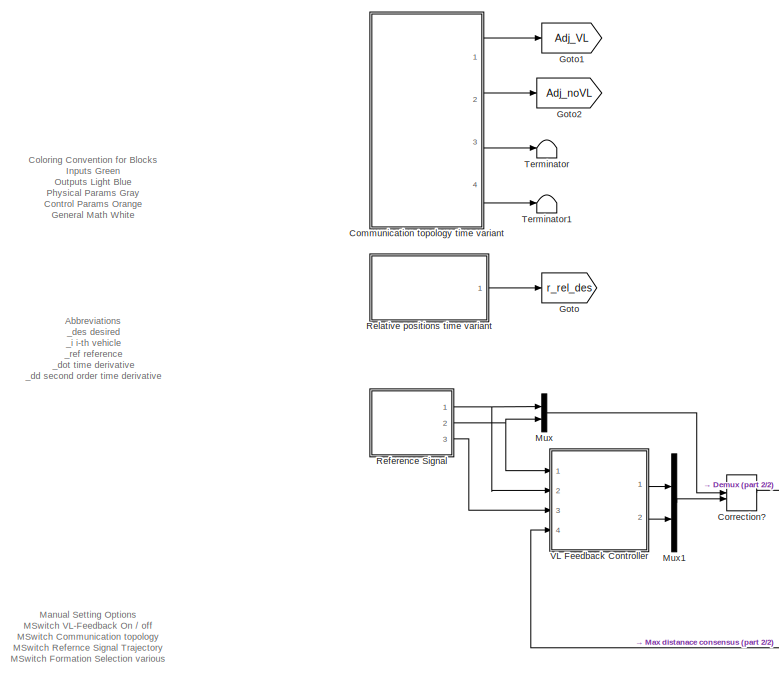
[diagram: root canvas - part 1/2, left side, full height]
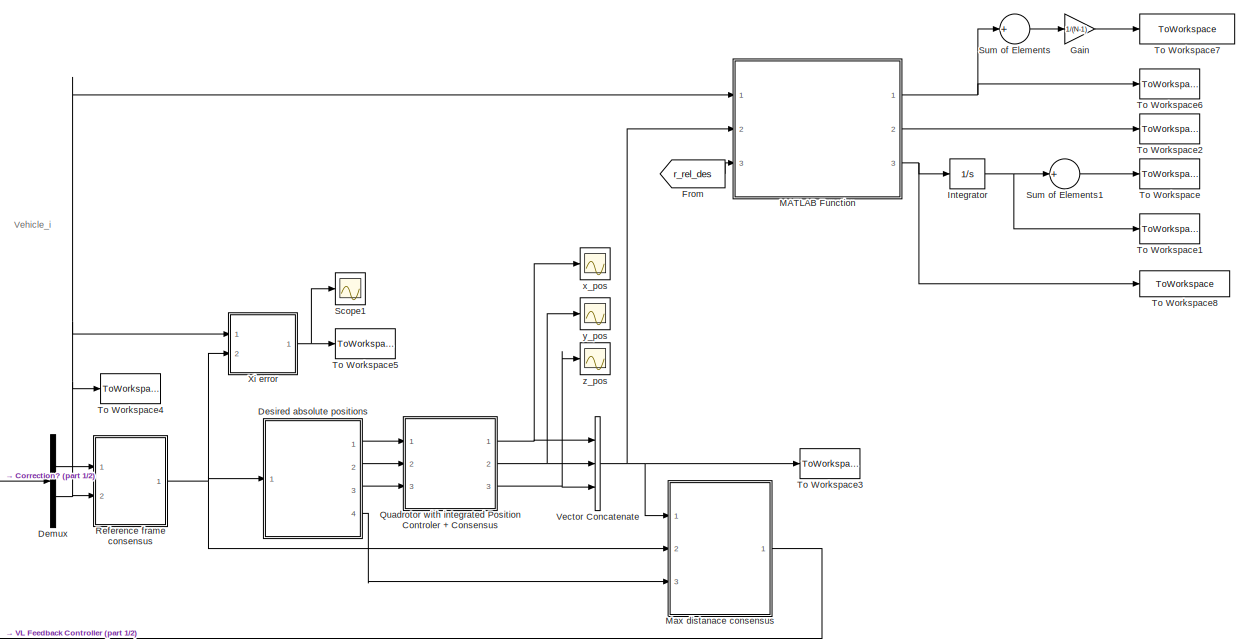
[diagram: root canvas - part 2/2, right side, full height]
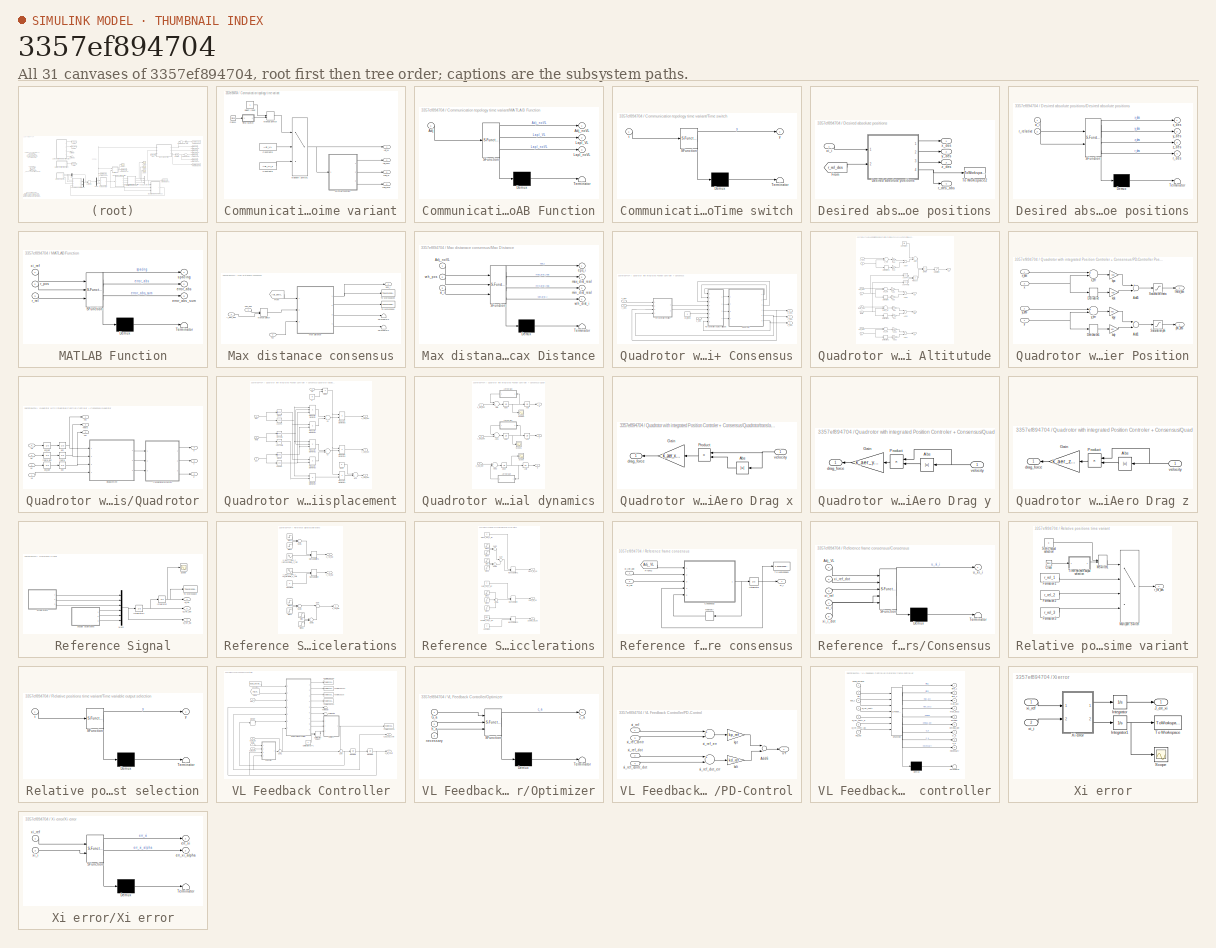
[diagram: thumbnail index - all 31 canvases of the model, root first then tree order]
MODEL slx_3357ef894704
KIND model
CONFIG AbsTol = auto
CONFIG FixedStep = 0.01
CONFIG MaxStep = 0.01
CONFIG MinStep = auto
CONFIG RelTol = 1e-3
CONFIG SampleTimeConstraint = Unconstrained
CONFIG Solver = ode45
CONFIG SolverMode = Auto
CONFIG SolverName = ode45
CONFIG StartTime = 0.0
CONFIG StopTime = 12
BLOCK [SubSystem] Communication topology time variant
  Ports = [0, 4]
  RequestExecContextInheritance = off
  Variant = off
BLOCK [Outport] Communication topology time variant/Adj_VL
  IconDisplay = Port number
BLOCK [Outport] Communication topology time variant/Adj_noVL
  IconDisplay = Port number
  Port = 2
BLOCK [Clock] Communication topology time variant/Clock1
BLOCK [Constant] Communication topology time variant/Constant5
  Value = Adj_VL
BLOCK [Constant] Communication topology time variant/Constant6
  Value = Adj_VL_2
BLOCK [Outport] Communication topology time variant/Lapl_VL
  IconDisplay = Port number
  Port = 3
BLOCK [Outport] Communication topology time variant/Lapl_noVL
  IconDisplay = Port number
  Port = 4
BLOCK [SubSystem] Communication topology time variant/MATLAB Function
  ErrorFcn = Stateflow.Translate.translate
  PermitHierarchicalResolution = ExplicitOnly
  Ports = [1, 3]
  RequestExecContextInheritance = off
  SFBlockType = MATLAB Function
  TreatAsAtomicUnit = on
  Variant = off
BLOCK [Demux] Communication topology time variant/MATLAB Function/ Demux 
  Outputs = 1
  Ports = [1, 1]
BLOCK [S-Function] Communication topology time variant/MATLAB Function/ SFunction 
  EnableBusSupport = on
  FunctionName = sf_sfun
  PortCounts = [1 4]
  Ports = [1, 4]
  SFunctionDeploymentMode = off
  Tag = Stateflow S-Function simulation 9
BLOCK [Terminator] Communication topology time variant/MATLAB Function/ Terminator 
BLOCK [Inport] Communication topology time variant/MATLAB Function/Adj
  IconDisplay = Port number
BLOCK [Outport] Communication topology time variant/MATLAB Function/Adj_noVL
  IconDisplay = Port number
BLOCK [Outport] Communication topology time variant/MATLAB Function/Lapl_VL
  IconDisplay = Port number
  Port = 2
BLOCK [Outport] Communication topology time variant/MATLAB Function/Lapl_noVL
  IconDisplay = Port number
  Port = 3
BLOCK [ManualSwitch] Communication topology time variant/Manual Switch
BLOCK [MultiPortSwitch] Communication topology time variant/Multiport Switch1
  InputSameDT = off
  Inputs = 2
  Ports = [3, 1]
  SaturateOnIntegerOverflow = off
BLOCK [Constant] Communication topology time variant/Select Input
BLOCK [SubSystem] Communication topology time variant/Time switch
  ErrorFcn = Stateflow.Translate.translate
  PermitHierarchicalResolution = ExplicitOnly
  Ports = [1, 1]
  RequestExecContextInheritance = off
  SFBlockType = MATLAB Function
  TreatAsAtomicUnit = on
  Variant = off
BLOCK [Demux] Communication topology time variant/Time switch/ Demux 
  Outputs = 1
  Ports = [1, 1]
BLOCK [S-Function] Communication topology time variant/Time switch/ SFunction 
  EnableBusSupport = on
  FunctionName = sf_sfun
  PortCounts = [1 2]
  Ports = [1, 2]
  SFunctionDeploymentMode = off
  Tag = Stateflow S-Function simulation 1
BLOCK [Terminator] Communication topology time variant/Time switch/ Terminator 
BLOCK [Inport] Communication topology time variant/Time switch/t
  IconDisplay = Port number
BLOCK [Outport] Communication topology time variant/Time switch/y
  IconDisplay = Port number
BLOCK [ManualSwitch] Correction?
BLOCK [Demux] Demux
  DisplayOption = bar
  Outputs = 2
  Ports = [1, 2]
BLOCK [SubSystem] Desired absolute positions
  Ports = [1, 4]
  RequestExecContextInheritance = off
  Variant = off
BLOCK [SubSystem] Desired absolute positions/Desired absolute positions
  ErrorFcn = Stateflow.Translate.translate
  PermitHierarchicalResolution = ExplicitOnly
  Ports = [2, 4]
  RequestExecContextInheritance = off
  SFBlockType = MATLAB Function
  TreatAsAtomicUnit = on
  Variant = off
BLOCK [Demux] Desired absolute positions/Desired absolute positions/ Demux 
  Outputs = 1
  Ports = [1, 1]
BLOCK [S-Function] Desired absolute positions/Desired absolute positions/ SFunction 
  EnableBusSupport = on
  FunctionName = sf_sfun
  PortCounts = [2 5]
  Ports = [2, 5]
  SFunctionDeploymentMode = off
  Tag = Stateflow S-Function simulation 4
BLOCK [Terminator] Desired absolute positions/Desired absolute positions/ Terminator 
BLOCK [Outport] Desired absolute positions/Desired absolute positions/r_des
  IconDisplay = Port number
  Port = 4
BLOCK [Inport] Desired absolute positions/Desired absolute positions/r_relative
  IconDisplay = Port number
  Port = 2
BLOCK [Outport] Desired absolute positions/Desired absolute positions/x_des
  IconDisplay = Port number
BLOCK [Inport] Desired absolute positions/Desired absolute positions/xi_i
  IconDisplay = Port number
BLOCK [Outport] Desired absolute positions/Desired absolute positions/y_des
  IconDisplay = Port number
  Port = 2
BLOCK [Outport] Desired absolute positions/Desired absolute positions/z_des
  IconDisplay = Port number
  Port = 3
BLOCK [From] Desired absolute positions/From
  GotoTag = r_rel_des
  TagVisibility = global
BLOCK [ToWorkspace] Desired absolute positions/To Workspace2
  FixptAsFi = on
  MaxDataPoints = inf
  Ports = [1]
  SampleTime = -1
  Save2DSignal = 3-D array (concatenate along third dimension)
  SaveFormat = Timeseries
  VariableName = des_pos
BLOCK [Outport] Desired absolute positions/r_des_abs
  IconDisplay = Port number
  Port = 4
BLOCK [Outport] Desired absolute positions/x_des
  IconDisplay = Port number
BLOCK [Inport] Desired absolute positions/xi_i
  IconDisplay = Port number
BLOCK [Outport] Desired absolute positions/y_des
  IconDisplay = Port number
  Port = 2
BLOCK [Outport] Desired absolute positions/z_des
  IconDisplay = Port number
  Port = 3
BLOCK [From] From
  GotoTag = r_rel_des
  TagVisibility = global
BLOCK [Gain] Gain
  Gain = 1/(N-1)
  OutDataTypeStr = Inherit: Inherit via internal rule
  ParamDataTypeStr = Inherit: Inherit via internal rule
  SaturateOnIntegerOverflow = off
BLOCK [Goto] Goto
  GotoTag = r_rel_des
  TagVisibility = global
BLOCK [Goto] Goto1
  GotoTag = Adj_VL
  TagVisibility = global
BLOCK [Goto] Goto2
  GotoTag = Adj_noVL
  TagVisibility = global
BLOCK [Integrator] Integrator
  Ports = [1, 1]
BLOCK [SubSystem] MATLAB Function
  ErrorFcn = Stateflow.Translate.translate
  PermitHierarchicalResolution = ExplicitOnly
  Ports = [3, 3]
  RequestExecContextInheritance = off
  SFBlockType = MATLAB Function
  TreatAsAtomicUnit = on
  Variant = off
BLOCK [Demux] MATLAB Function/ Demux 
  Outputs = 1
  Ports = [1, 1]
BLOCK [S-Function] MATLAB Function/ SFunction 
  EnableBusSupport = on
  FunctionName = sf_sfun
  PortCounts = [3 4]
  Ports = [3, 4]
  SFunctionDeploymentMode = off
  Tag = Stateflow S-Function simulation 11
BLOCK [Terminator] MATLAB Function/ Terminator 
BLOCK [Outport] MATLAB Function/error_abs
  IconDisplay = Port number
  Port = 2
BLOCK [Outport] MATLAB Function/error_abs_sum
  IconDisplay = Port number
  Port = 3
BLOCK [Inport] MATLAB Function/r_pos
  IconDisplay = Port number
  Port = 2
BLOCK [Inport] MATLAB Function/r_rel
  IconDisplay = Port number
  Port = 3
BLOCK [Outport] MATLAB Function/spacing
  IconDisplay = Port number
BLOCK [Inport] MATLAB Function/xi_ref
  IconDisplay = Port number
BLOCK [SubSystem] Max distanace consensus
  Ports = [3, 1]
  RequestExecContextInheritance = off
  Variant = off
BLOCK [From] Max distanace consensus/From
  GotoTag = Adj_noVL
  TagVisibility = global
BLOCK [ManualSwitch] Max distanace consensus/Manual Switch
  CurrentSetting = 0
BLOCK [SubSystem] Max distanace consensus/Max Distance
  ErrorFcn = Stateflow.Translate.translate
  PermitHierarchicalResolution = ExplicitOnly
  Ports = [3, 4]
  RequestExecContextInheritance = off
  SFBlockType = MATLAB Function
  TreatAsAtomicUnit = on
  Variant = off
BLOCK [Demux] Max distanace consensus/Max Distance/ Demux 
  Outputs = 1
  Ports = [1, 1]
BLOCK [S-Function] Max distanace consensus/Max Distance/ SFunction 
  EnableBusSupport = on
  FunctionName = sf_sfun
  PortCounts = [3 5]
  Ports = [3, 5]
  SFunctionDeploymentMode = off
  Tag = Stateflow S-Function simulation 5
BLOCK [Terminator] Max distanace consensus/Max Distance/ Terminator 
BLOCK [Inport] Max distanace consensus/Max Distance/Adj_noVL
  IconDisplay = Port number
BLOCK [Outport] Max distanace consensus/Max Distance/eps_i
  IconDisplay = Port number
BLOCK [Outport] Max distanace consensus/Max Distance/max_dist_real
  IconDisplay = Port number
  Port = 2
BLOCK [Outport] Max distanace consensus/Max Distance/min_dist_real
  IconDisplay = Port number
  Port = 3
BLOCK [Outport] Max distanace consensus/Max Distance/veh_dist_i
  IconDisplay = Port number
  Port = 4
BLOCK [Inport] Max distanace consensus/Max Distance/veh_pos
  IconDisplay = Port number
  Port = 2
BLOCK [Inport] Max distanace consensus/Max Distance/xi_i
  IconDisplay = Port number
  Port = 3
BLOCK [Terminator] Max distanace consensus/Terminator2
BLOCK [Terminator] Max distanace consensus/Terminator3
BLOCK [ToWorkspace] Max distanace consensus/To Workspace
  FixptAsFi = on
  MaxDataPoints = inf
  Ports = [1]
  SampleTime = -1
  Save2DSignal = 3-D array (concatenate along third dimension)
  SaveFormat = Timeseries
  VariableName = max_dist
BLOCK [ToWorkspace] Max distanace consensus/To Workspace2
  FixptAsFi = on
  MaxDataPoints = inf
  Ports = [1]
  SampleTime = -1
  Save2DSignal = 3-D array (concatenate along third dimension)
  SaveFormat = Timeseries
  VariableName = eps_i
BLOCK [Outport] Max distanace consensus/eps_i
  IconDisplay = Port number
BLOCK [Inport] Max distanace consensus/r_des_abs
  IconDisplay = Port number
  Port = 3
BLOCK [Inport] Max distanace consensus/veh_pos
  IconDisplay = Port number
BLOCK [Inport] Max distanace consensus/xi_i
  IconDisplay = Port number
  Port = 2
BLOCK [Mux] Mux
  DisplayOption = bar
  Inputs = 2
  Ports = [2, 1]
BLOCK [Mux] Mux1
  DisplayOption = bar
  Inputs = 2
  Ports = [2, 1]
BLOCK [SubSystem] Quadrotor with integrated Position Controler + Consensus
  Ports = [3, 3]
  RequestExecContextInheritance = off
  Variant = off
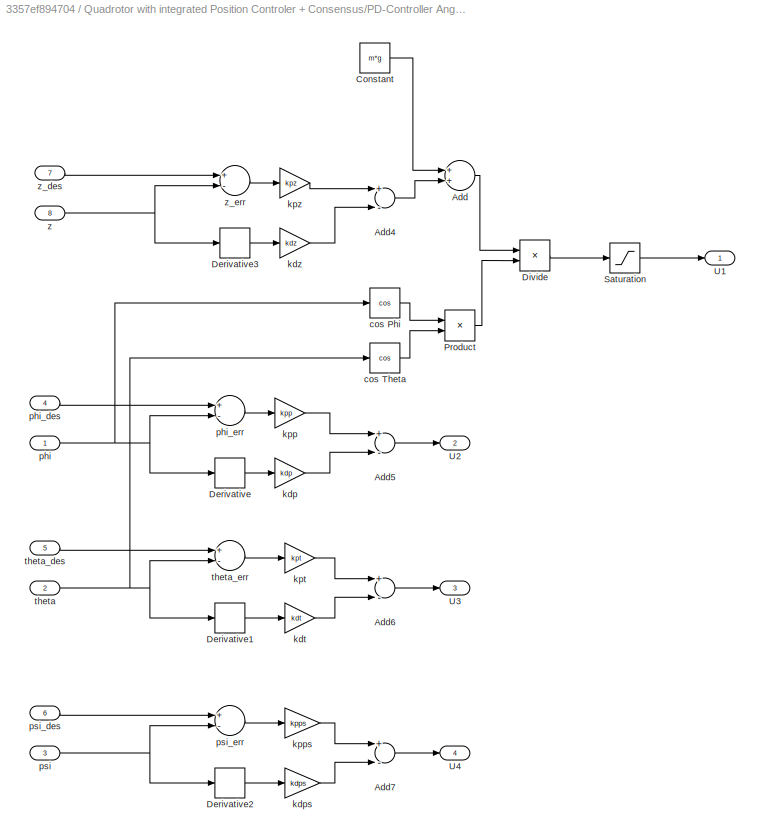
BLOCK [SubSystem] Quadrotor with integrated Position Controler + Consensus/PD-Controller Angles + Altitutude
  Ports = [8, 4]
  RequestExecContextInheritance = off
  Variant = off
BLOCK [Sum] Quadrotor with integrated Position Controler + Consensus/PD-Controller Angles + Altitutude/Add
  InputSameDT = off
  OutDataTypeStr = Inherit: Inherit via internal rule
  Ports = [2, 1]
  SaturateOnIntegerOverflow = off
BLOCK [Sum] Quadrotor with integrated Position Controler + Consensus/PD-Controller Angles + Altitutude/Add4
  InputSameDT = off
  Inputs = +-
  OutDataTypeStr = Inherit: Inherit via internal rule
  Ports = [2, 1]
  SaturateOnIntegerOverflow = off
BLOCK [Sum] Quadrotor with integrated Position Controler + Consensus/PD-Controller Angles + Altitutude/Add5
  InputSameDT = off
  Inputs = +-
  OutDataTypeStr = Inherit: Inherit via internal rule
  Ports = [2, 1]
  SaturateOnIntegerOverflow = off
BLOCK [Sum] Quadrotor with integrated Position Controler + Consensus/PD-Controller Angles + Altitutude/Add6
  InputSameDT = off
  Inputs = +-
  OutDataTypeStr = Inherit: Inherit via internal rule
  Ports = [2, 1]
  SaturateOnIntegerOverflow = off
BLOCK [Sum] Quadrotor with integrated Position Controler + Consensus/PD-Controller Angles + Altitutude/Add7
  InputSameDT = off
  Inputs = +-
  OutDataTypeStr = Inherit: Inherit via internal rule
  Ports = [2, 1]
  SaturateOnIntegerOverflow = off
BLOCK [Constant] Quadrotor with integrated Position Controler + Consensus/PD-Controller Angles + Altitutude/Constant
  Value = m*g
BLOCK [Derivative] Quadrotor with integrated Position Controler + Consensus/PD-Controller Angles + Altitutude/Derivative
BLOCK [Derivative] Quadrotor with integrated Position Controler + Consensus/PD-Controller Angles + Altitutude/Derivative1
BLOCK [Derivative] Quadrotor with integrated Position Controler + Consensus/PD-Controller Angles + Altitutude/Derivative2
BLOCK [Derivative] Quadrotor with integrated Position Controler + Consensus/PD-Controller Angles + Altitutude/Derivative3
BLOCK [Product] Quadrotor with integrated Position Controler + Consensus/PD-Controller Angles + Altitutude/Divide
  InputSameDT = off
  Inputs = */
  OutDataTypeStr = Inherit: Inherit via internal rule
  Ports = [2, 1]
  RndMeth = Floor
  SaturateOnIntegerOverflow = off
BLOCK [Product] Quadrotor with integrated Position Controler + Consensus/PD-Controller Angles + Altitutude/Product
  InputSameDT = off
  OutDataTypeStr = Inherit: Inherit via internal rule
  Ports = [2, 1]
  SaturateOnIntegerOverflow = off
BLOCK [Saturate] Quadrotor with integrated Position Controler + Consensus/PD-Controller Angles + Altitutude/Saturation
  InputPortMap = u0
  LowerLimit = 0
  Ports = [1, 1]
  UpperLimit = f_thrust_limit_up
  ZeroCross = off
BLOCK [Outport] Quadrotor with integrated Position Controler + Consensus/PD-Controller Angles + Altitutude/U1
  IconDisplay = Port number
BLOCK [Outport] Quadrotor with integrated Position Controler + Consensus/PD-Controller Angles + Altitutude/U2
  IconDisplay = Port number
  Port = 2
BLOCK [Outport] Quadrotor with integrated Position Controler + Consensus/PD-Controller Angles + Altitutude/U3
  IconDisplay = Port number
  Port = 3
BLOCK [Outport] Quadrotor with integrated Position Controler + Consensus/PD-Controller Angles + Altitutude/U4
  IconDisplay = Port number
  Port = 4
BLOCK [Trigonometry] Quadrotor with integrated Position Controler + Consensus/PD-Controller Angles + Altitutude/cos Phi
  Operator = cos
  Ports = [1, 1]
BLOCK [Trigonometry] Quadrotor with integrated Position Controler + Consensus/PD-Controller Angles + Altitutude/cos Theta
  Operator = cos
  Ports = [1, 1]
BLOCK [Gain] Quadrotor with integrated Position Controler + Consensus/PD-Controller Angles + Altitutude/kdp
  Gain = kdp
  OutDataTypeStr = Inherit: Inherit via internal rule
  ParamDataTypeStr = Inherit: Inherit via internal rule
  SaturateOnIntegerOverflow = off
BLOCK [Gain] Quadrotor with integrated Position Controler + Consensus/PD-Controller Angles + Altitutude/kdps
  Gain = kdps
  OutDataTypeStr = Inherit: Inherit via internal rule
  ParamDataTypeStr = Inherit: Inherit via internal rule
  SaturateOnIntegerOverflow = off
BLOCK [Gain] Quadrotor with integrated Position Controler + Consensus/PD-Controller Angles + Altitutude/kdt
  Gain = kdt
  OutDataTypeStr = Inherit: Inherit via internal rule
  ParamDataTypeStr = Inherit: Inherit via internal rule
  SaturateOnIntegerOverflow = off
BLOCK [Gain] Quadrotor with integrated Position Controler + Consensus/PD-Controller Angles + Altitutude/kdz
  Gain = kdz
  OutDataTypeStr = Inherit: Inherit via internal rule
  ParamDataTypeStr = Inherit: Inherit via internal rule
  SaturateOnIntegerOverflow = off
BLOCK [Gain] Quadrotor with integrated Position Controler + Consensus/PD-Controller Angles + Altitutude/kpp
  Gain = kpp
  OutDataTypeStr = Inherit: Inherit via internal rule
  ParamDataTypeStr = Inherit: Inherit via internal rule
  SaturateOnIntegerOverflow = off
BLOCK [Gain] Quadrotor with integrated Position Controler + Consensus/PD-Controller Angles + Altitutude/kpps
  Gain = kpps
  OutDataTypeStr = Inherit: Inherit via internal rule
  ParamDataTypeStr = Inherit: Inherit via internal rule
  SaturateOnIntegerOverflow = off
BLOCK [Gain] Quadrotor with integrated Position Controler + Consensus/PD-Controller Angles + Altitutude/kpt
  Gain = kpt
  OutDataTypeStr = Inherit: Inherit via internal rule
  ParamDataTypeStr = Inherit: Inherit via internal rule
  SaturateOnIntegerOverflow = off
BLOCK [Gain] Quadrotor with integrated Position Controler + Consensus/PD-Controller Angles + Altitutude/kpz
  Gain = kpz
  OutDataTypeStr = Inherit: Inherit via internal rule
  ParamDataTypeStr = Inherit: Inherit via internal rule
  SaturateOnIntegerOverflow = off
BLOCK [Inport] Quadrotor with integrated Position Controler + Consensus/PD-Controller Angles + Altitutude/phi
  IconDisplay = Port number
BLOCK [Inport] Quadrotor with integrated Position Controler + Consensus/PD-Controller Angles + Altitutude/phi_des
  IconDisplay = Port number
  Port = 4
BLOCK [Sum] Quadrotor with integrated Position Controler + Consensus/PD-Controller Angles + Altitutude/phi_err
  InputSameDT = off
  Inputs = +-
  OutDataTypeStr = Inherit: Inherit via internal rule
  Ports = [2, 1]
  SaturateOnIntegerOverflow = off
BLOCK [Inport] Quadrotor with integrated Position Controler + Consensus/PD-Controller Angles + Altitutude/psi
  IconDisplay = Port number
  Port = 3
BLOCK [Inport] Quadrotor with integrated Position Controler + Consensus/PD-Controller Angles + Altitutude/psi_des
  IconDisplay = Port number
  Port = 6
BLOCK [Sum] Quadrotor with integrated Position Controler + Consensus/PD-Controller Angles + Altitutude/psi_err
  InputSameDT = off
  Inputs = +-
  OutDataTypeStr = Inherit: Inherit via internal rule
  Ports = [2, 1]
  SaturateOnIntegerOverflow = off
BLOCK [Inport] Quadrotor with integrated Position Controler + Consensus/PD-Controller Angles + Altitutude/theta
  IconDisplay = Port number
  Port = 2
BLOCK [Inport] Quadrotor with integrated Position Controler + Consensus/PD-Controller Angles + Altitutude/theta_des
  IconDisplay = Port number
  Port = 5
BLOCK [Sum] Quadrotor with integrated Position Controler + Consensus/PD-Controller Angles + Altitutude/theta_err
  InputSameDT = off
  Inputs = +-
  OutDataTypeStr = Inherit: Inherit via internal rule
  Ports = [2, 1]
  SaturateOnIntegerOverflow = off
BLOCK [Inport] Quadrotor with integrated Position Controler + Consensus/PD-Controller Angles + Altitutude/z
  IconDisplay = Port number
  Port = 8
BLOCK [Inport] Quadrotor with integrated Position Controler + Consensus/PD-Controller Angles + Altitutude/z_des
  IconDisplay = Port number
  Port = 7
BLOCK [Sum] Quadrotor with integrated Position Controler + Consensus/PD-Controller Angles + Altitutude/z_err
  InputSameDT = off
  Inputs = +-
  OutDataTypeStr = Inherit: Inherit via internal rule
  Ports = [2, 1]
  SaturateOnIntegerOverflow = off
BLOCK [SubSystem] Quadrotor with integrated Position Controler + Consensus/PD-Controller Position
  Ports = [4, 2]
  RequestExecContextInheritance = off
  Variant = off
BLOCK [Sum] Quadrotor with integrated Position Controler + Consensus/PD-Controller Position/Add1
  InputSameDT = off
  Inputs = +-
  OutDataTypeStr = Inherit: Inherit via internal rule
  Ports = [2, 1]
  SaturateOnIntegerOverflow = off
BLOCK [Sum] Quadrotor with integrated Position Controler + Consensus/PD-Controller Position/Add5
  InputSameDT = off
  Inputs = +-
  OutDataTypeStr = Inherit: Inherit via internal rule
  Ports = [2, 1]
  SaturateOnIntegerOverflow = off
BLOCK [Derivative] Quadrotor with integrated Position Controler + Consensus/PD-Controller Position/Derivative
BLOCK [Derivative] Quadrotor with integrated Position Controler + Consensus/PD-Controller Position/Derivative1
BLOCK [Saturate] Quadrotor with integrated Position Controler + Consensus/PD-Controller Position/Saturation phi
  InputPortMap = u0
  LowerLimit = -max_phi
  Ports = [1, 1]
  UpperLimit = max_phi
  ZeroCross = off
BLOCK [Saturate] Quadrotor with integrated Position Controler + Consensus/PD-Controller Position/Saturation theta
  InputPortMap = u0
  LowerLimit = -max_theta
  Ports = [1, 1]
  UpperLimit = max_theta
  ZeroCross = off
BLOCK [Gain] Quadrotor with integrated Position Controler + Consensus/PD-Controller Position/kdx
  Gain = kdx
  OutDataTypeStr = Inherit: Inherit via internal rule
  ParamDataTypeStr = Inherit: Inherit via internal rule
  SaturateOnIntegerOverflow = off
BLOCK [Gain] Quadrotor with integrated Position Controler + Consensus/PD-Controller Position/kdy
  Gain = kdy
  OutDataTypeStr = Inherit: Inherit via internal rule
  ParamDataTypeStr = Inherit: Inherit via internal rule
  SaturateOnIntegerOverflow = off
BLOCK [Gain] Quadrotor with integrated Position Controler + Consensus/PD-Controller Position/kpx
  Gain = kpx
  OutDataTypeStr = Inherit: Inherit via internal rule
  ParamDataTypeStr = Inherit: Inherit via internal rule
  SaturateOnIntegerOverflow = off
BLOCK [Gain] Quadrotor with integrated Position Controler + Consensus/PD-Controller Position/kpy
  Gain = kpy
  OutDataTypeStr = Inherit: Inherit via internal rule
  ParamDataTypeStr = Inherit: Inherit via internal rule
  SaturateOnIntegerOverflow = off
BLOCK [Outport] Quadrotor with integrated Position Controler + Consensus/PD-Controller Position/phi_des
  IconDisplay = Port number
BLOCK [Outport] Quadrotor with integrated Position Controler + Consensus/PD-Controller Position/theta_des
  IconDisplay = Port number
  Port = 2
BLOCK [Inport] Quadrotor with integrated Position Controler + Consensus/PD-Controller Position/x
  IconDisplay = Port number
  Port = 3
BLOCK [Inport] Quadrotor with integrated Position Controler + Consensus/PD-Controller Position/x_des
  IconDisplay = Port number
BLOCK [Sum] Quadrotor with integrated Position Controler + Consensus/PD-Controller Position/x_err
  InputSameDT = off
  Inputs = +-
  OutDataTypeStr = Inherit: Inherit via internal rule
  Ports = [2, 1]
  SaturateOnIntegerOverflow = off
BLOCK [Inport] Quadrotor with integrated Position Controler + Consensus/PD-Controller Position/y
  IconDisplay = Port number
  Port = 4
BLOCK [Inport] Quadrotor with integrated Position Controler + Consensus/PD-Controller Position/y_des
  IconDisplay = Port number
  Port = 2
BLOCK [Sum] Quadrotor with integrated Position Controler + Consensus/PD-Controller Position/y_err
  InputSameDT = off
  Inputs = +-
  OutDataTypeStr = Inherit: Inherit via internal rule
  Ports = [2, 1]
  SaturateOnIntegerOverflow = off
BLOCK [SubSystem] Quadrotor with integrated Position Controler + Consensus/Quadrotor
  Ports = [4, 6]
  RequestExecContextInheritance = off
  Variant = off
BLOCK [Outport] Quadrotor with integrated Position Controler + Consensus/Quadrotor/Phi
  IconDisplay = Port number
BLOCK [Outport] Quadrotor with integrated Position Controler + Consensus/Quadrotor/Psi
  IconDisplay = Port number
  Port = 3
BLOCK [Outport] Quadrotor with integrated Position Controler + Consensus/Quadrotor/Theta
  IconDisplay = Port number
  Port = 2
BLOCK [Inport] Quadrotor with integrated Position Controler + Consensus/Quadrotor/U1
  IconDisplay = Port number
BLOCK [Inport] Quadrotor with integrated Position Controler + Consensus/Quadrotor/U2
  IconDisplay = Port number
  Port = 2
BLOCK [Inport] Quadrotor with integrated Position Controler + Consensus/Quadrotor/U3
  IconDisplay = Port number
  Port = 3
BLOCK [Inport] Quadrotor with integrated Position Controler + Consensus/Quadrotor/U4
  IconDisplay = Port number
  Port = 4
BLOCK [Outport] Quadrotor with integrated Position Controler + Consensus/Quadrotor/X
  IconDisplay = Port number
  Port = 4
BLOCK [Outport] Quadrotor with integrated Position Controler + Consensus/Quadrotor/Y
  IconDisplay = Port number
  Port = 5
BLOCK [Outport] Quadrotor with integrated Position Controler + Consensus/Quadrotor/Z
  IconDisplay = Port number
  Port = 6
BLOCK [SubSystem] Quadrotor with integrated Position Controler + Consensus/Quadrotor/displacement
  Ports = [4, 3]
  RequestExecContextInheritance = off
  Variant = off
BLOCK [Product] Quadrotor with integrated Position Controler + Consensus/Quadrotor/displacement/Divide
  InputSameDT = off
  Inputs = */
  OutDataTypeStr = Inherit: Inherit via internal rule
  Ports = [2, 1]
  RndMeth = Floor
  SaturateOnIntegerOverflow = off
BLOCK [Constant] Quadrotor with integrated Position Controler + Consensus/Quadrotor/displacement/Gravity
  Value = g
BLOCK [Product] Quadrotor with integrated Position Controler + Consensus/Quadrotor/displacement/Product of Elements
  InputSameDT = off
  Inputs = 3
  OutDataTypeStr = Inherit: Inherit via internal rule
  Ports = [3, 1]
  RndMeth = Floor
  SaturateOnIntegerOverflow = off
BLOCK [Product] Quadrotor with integrated Position Controler + Consensus/Quadrotor/displacement/Product of Elements1
  InputSameDT = off
  OutDataTypeStr = Inherit: Inherit via internal rule
  Ports = [2, 1]
  RndMeth = Floor
  SaturateOnIntegerOverflow = off
BLOCK [Product] Quadrotor with integrated Position Controler + Consensus/Quadrotor/displacement/Product of Elements2
  InputSameDT = off
  Inputs = 3
  OutDataTypeStr = Inherit: Inherit via internal rule
  Ports = [3, 1]
  RndMeth = Floor
  SaturateOnIntegerOverflow = off
BLOCK [Product] Quadrotor with integrated Position Controler + Consensus/Quadrotor/displacement/Product of Elements3
  InputSameDT = off
  OutDataTypeStr = Inherit: Inherit via internal rule
  Ports = [2, 1]
  RndMeth = Floor
  SaturateOnIntegerOverflow = off
BLOCK [Product] Quadrotor with integrated Position Controler + Consensus/Quadrotor/displacement/Product of Elements4
  InputSameDT = off
  OutDataTypeStr = Inherit: Inherit via internal rule
  Ports = [2, 1]
  RndMeth = Floor
  SaturateOnIntegerOverflow = off
BLOCK [Product] Quadrotor with integrated Position Controler + Consensus/Quadrotor/displacement/Product of Elements5
  InputSameDT = off
  OutDataTypeStr = Inherit: Inherit via internal rule
  Ports = [2, 1]
  RndMeth = Floor
  SaturateOnIntegerOverflow = off
BLOCK [Product] Quadrotor with integrated Position Controler + Consensus/Quadrotor/displacement/Product of Elements6
  InputSameDT = off
  OutDataTypeStr = Inherit: Inherit via internal rule
  Ports = [2, 1]
  RndMeth = Floor
  SaturateOnIntegerOverflow = off
BLOCK [Product] Quadrotor with integrated Position Controler + Consensus/Quadrotor/displacement/Product of Elements7
  InputSameDT = off
  OutDataTypeStr = Inherit: Inherit via internal rule
  Ports = [2, 1]
  RndMeth = Floor
  SaturateOnIntegerOverflow = off
BLOCK [Inport] Quadrotor with integrated Position Controler + Consensus/Quadrotor/displacement/U1
  IconDisplay = Port number
  Port = 4
BLOCK [Trigonometry] Quadrotor with integrated Position Controler + Consensus/Quadrotor/displacement/cos Phi
  Operator = cos
  Ports = [1, 1]
BLOCK [Trigonometry] Quadrotor with integrated Position Controler + Consensus/Quadrotor/displacement/cos Psi
  Operator = cos
  Ports = [1, 1]
BLOCK [Trigonometry] Quadrotor with integrated Position Controler + Consensus/Quadrotor/displacement/cos Theta
  Operator = cos
  Ports = [1, 1]
BLOCK [Constant] Quadrotor with integrated Position Controler + Consensus/Quadrotor/displacement/m
  Value = m
BLOCK [Inport] Quadrotor with integrated Position Controler + Consensus/Quadrotor/displacement/phi
  IconDisplay = Port number
BLOCK [Inport] Quadrotor with integrated Position Controler + Consensus/Quadrotor/displacement/psi
  IconDisplay = Port number
  Port = 3
BLOCK [Trigonometry] Quadrotor with integrated Position Controler + Consensus/Quadrotor/displacement/sin Phi
  Ports = [1, 1]
BLOCK [Trigonometry] Quadrotor with integrated Position Controler + Consensus/Quadrotor/displacement/sin Psi
  Ports = [1, 1]
BLOCK [Trigonometry] Quadrotor with integrated Position Controler + Consensus/Quadrotor/displacement/sin Theta
  Ports = [1, 1]
BLOCK [Inport] Quadrotor with integrated Position Controler + Consensus/Quadrotor/displacement/theta
  IconDisplay = Port number
  Port = 2
BLOCK [Sum] Quadrotor with integrated Position Controler + Consensus/Quadrotor/displacement/ux
  InputSameDT = off
  OutDataTypeStr = Inherit: Inherit via internal rule
  Ports = [2, 1]
  SaturateOnIntegerOverflow = off
BLOCK [Sum] Quadrotor with integrated Position Controler + Consensus/Quadrotor/displacement/uy
  InputSameDT = off
  Inputs = -+
  OutDataTypeStr = Inherit: Inherit via internal rule
  Ports = [2, 1]
  SaturateOnIntegerOverflow = off
BLOCK [Sum] Quadrotor with integrated Position Controler + Consensus/Quadrotor/displacement/uy1
  InputSameDT = off
  Inputs = -+
  OutDataTypeStr = Inherit: Inherit via internal rule
  Ports = [2, 1]
  SaturateOnIntegerOverflow = off
BLOCK [Outport] Quadrotor with integrated Position Controler + Consensus/Quadrotor/displacement/x_dot_dot
  IconDisplay = Port number
BLOCK [Outport] Quadrotor with integrated Position Controler + Consensus/Quadrotor/displacement/y_dot_dot
  IconDisplay = Port number
  Port = 2
BLOCK [Outport] Quadrotor with integrated Position Controler + Consensus/Quadrotor/displacement/z_dot_dot
  IconDisplay = Port number
  Port = 3
BLOCK [Integrator] Quadrotor with integrated Position Controler + Consensus/Quadrotor/phi
  Ports = [1, 1]
  ZeroCross = off
BLOCK [Integrator] Quadrotor with integrated Position Controler + Consensus/Quadrotor/phi_dot
  Ports = [1, 1]
BLOCK [Integrator] Quadrotor with integrated Position Controler + Consensus/Quadrotor/psi
  Ports = [1, 1]
  ZeroCross = off
BLOCK [Integrator] Quadrotor with integrated Position Controler + Consensus/Quadrotor/psi_dot
  Ports = [1, 1]
  ZeroCross = off
BLOCK [Integrator] Quadrotor with integrated Position Controler + Consensus/Quadrotor/theta
  Ports = [1, 1]
  ZeroCross = off
BLOCK [Integrator] Quadrotor with integrated Position Controler + Consensus/Quadrotor/theta_dot
  Ports = [1, 1]
  ZeroCross = off
BLOCK [SubSystem] Quadrotor with integrated Position Controler + Consensus/Quadrotor/translational dynamics
  Ports = [3, 3]
  RequestExecContextInheritance = off
  Variant = off
BLOCK [Integrator] Quadrotor with integrated Position Controler + Consensus/Quadrotor/translational dynamics/Act X
  InitialCondition = r_init(1,:)
  Ports = [1, 1]
BLOCK [Integrator] Quadrotor with integrated Position Controler + Consensus/Quadrotor/translational dynamics/Act Y
  InitialCondition = r_init(2,:)
  Ports = [1, 1]
BLOCK [Integrator] Quadrotor with integrated Position Controler + Consensus/Quadrotor/translational dynamics/Act Z
  InitialCondition = r_init(3,:)
  Ports = [1, 1]
BLOCK [Sum] Quadrotor with integrated Position Controler + Consensus/Quadrotor/translational dynamics/Add
  InputSameDT = off
  Inputs = -+
  OutDataTypeStr = Inherit: Inherit via internal rule
  Ports = [2, 1]
  SaturateOnIntegerOverflow = off
BLOCK [Sum] Quadrotor with integrated Position Controler + Consensus/Quadrotor/translational dynamics/Add1
  InputSameDT = off
  Inputs = -+
  OutDataTypeStr = Inherit: Inherit via internal rule
  Ports = [2, 1]
  SaturateOnIntegerOverflow = off
BLOCK [Sum] Quadrotor with integrated Position Controler + Consensus/Quadrotor/translational dynamics/Add2
  InputSameDT = off
  Inputs = +-
  OutDataTypeStr = Inherit: Inherit via internal rule
  Ports = [2, 1]
  SaturateOnIntegerOverflow = off
BLOCK [SubSystem] Quadrotor with integrated Position Controler + Consensus/Quadrotor/translational dynamics/Aero Drag x
  Ports = [1, 1]
  RequestExecContextInheritance = off
  Variant = off
BLOCK [Abs] Quadrotor with integrated Position Controler + Consensus/Quadrotor/translational dynamics/Aero Drag x/Abs
  SaturateOnIntegerOverflow = off
BLOCK [Gain] Quadrotor with integrated Position Controler + Consensus/Quadrotor/translational dynamics/Aero Drag x/Gain
  Gain = k_aer_x/m
  OutDataTypeStr = Inherit: Inherit via internal rule
  ParamDataTypeStr = Inherit: Inherit via internal rule
  SaturateOnIntegerOverflow = off
BLOCK [Product] Quadrotor with integrated Position Controler + Consensus/Quadrotor/translational dynamics/Aero Drag x/Product
  InputSameDT = off
  OutDataTypeStr = Inherit: Inherit via internal rule
  Ports = [2, 1]
  RndMeth = Floor
  SaturateOnIntegerOverflow = off
BLOCK [Outport] Quadrotor with integrated Position Controler + Consensus/Quadrotor/translational dynamics/Aero Drag x/drag_force
  IconDisplay = Port number
BLOCK [Inport] Quadrotor with integrated Position Controler + Consensus/Quadrotor/translational dynamics/Aero Drag x/velocity
  IconDisplay = Port number
BLOCK [SubSystem] Quadrotor with integrated Position Controler + Consensus/Quadrotor/translational dynamics/Aero Drag y
  Ports = [1, 1]
  RequestExecContextInheritance = off
  Variant = off
BLOCK [Abs] Quadrotor with integrated Position Controler + Consensus/Quadrotor/translational dynamics/Aero Drag y/Abs
  SaturateOnIntegerOverflow = off
BLOCK [Gain] Quadrotor with integrated Position Controler + Consensus/Quadrotor/translational dynamics/Aero Drag y/Gain
  Gain = k_aer_y/m
  OutDataTypeStr = Inherit: Inherit via internal rule
  ParamDataTypeStr = Inherit: Inherit via internal rule
  SaturateOnIntegerOverflow = off
BLOCK [Product] Quadrotor with integrated Position Controler + Consensus/Quadrotor/translational dynamics/Aero Drag y/Product
  InputSameDT = off
  OutDataTypeStr = Inherit: Inherit via internal rule
  Ports = [2, 1]
  RndMeth = Floor
  SaturateOnIntegerOverflow = off
BLOCK [Outport] Quadrotor with integrated Position Controler + Consensus/Quadrotor/translational dynamics/Aero Drag y/drag_force
  IconDisplay = Port number
BLOCK [Inport] Quadrotor with integrated Position Controler + Consensus/Quadrotor/translational dynamics/Aero Drag y/velocity
  IconDisplay = Port number
BLOCK [SubSystem] Quadrotor with integrated Position Controler + Consensus/Quadrotor/translational dynamics/Aero Drag z
  Ports = [1, 1]
  RequestExecContextInheritance = off
  Variant = off
BLOCK [Abs] Quadrotor with integrated Position Controler + Consensus/Quadrotor/translational dynamics/Aero Drag z/Abs
  SaturateOnIntegerOverflow = off
BLOCK [Gain] Quadrotor with integrated Position Controler + Consensus/Quadrotor/translational dynamics/Aero Drag z/Gain
  Gain = k_aer_z/m
  OutDataTypeStr = Inherit: Inherit via internal rule
  ParamDataTypeStr = Inherit: Inherit via internal rule
  SaturateOnIntegerOverflow = off
BLOCK [Product] Quadrotor with integrated Position Controler + Consensus/Quadrotor/translational dynamics/Aero Drag z/Product
  InputSameDT = off
  OutDataTypeStr = Inherit: Inherit via internal rule
  Ports = [2, 1]
  RndMeth = Floor
  SaturateOnIntegerOverflow = off
BLOCK [Outport] Quadrotor with integrated Position Controler + Consensus/Quadrotor/translational dynamics/Aero Drag z/drag_force
  IconDisplay = Port number
BLOCK [Inport] Quadrotor with integrated Position Controler + Consensus/Quadrotor/translational dynamics/Aero Drag z/velocity
  IconDisplay = Port number
BLOCK [Scope] Quadrotor with integrated Position Controler + Consensus/Quadrotor/translational dynamics/Scope
  Ports = [1]
  ScopeSpecificationString = Simulink.scopes.TimeScopeBlockCfg('CurrentConfiguration', extmgr.ConfigurationSet(extmgr.Configuration('Core','General UI',true),extmgr.Configuration('Core','Source UI',true),extmgr.Configuration('Sources','WiredSimulink',true,'DataLoggingVariableName','ScopeData1'),extmgr.Configuration('Visuals','Time Domain',true,'SerializedDisplays',{struct('MinYLimReal','-0.27129','MaxYLimReal','2.2646','YLabe...<+1439ch>
BLOCK [Scope] Quadrotor with integrated Position Controler + Consensus/Quadrotor/translational dynamics/Scope1
  Ports = [1]
  ScopeSpecificationString = Simulink.scopes.TimeScopeBlockCfg('CurrentConfiguration', extmgr.ConfigurationSet(extmgr.Configuration('Core','General UI',true),extmgr.Configuration('Core','Source UI',true),extmgr.Configuration('Sources','WiredSimulink',true,'DataLoggingVariableName','ScopeData2'),extmgr.Configuration('Visuals','Time Domain',true,'SerializedDisplays',{struct('MinYLimReal','-0.74786','MaxYLimReal','0.74343','YLab...<+1443ch>
BLOCK [Scope] Quadrotor with integrated Position Controler + Consensus/Quadrotor/translational dynamics/Scope2
  Ports = [1]
  ScopeSpecificationString = Simulink.scopes.TimeScopeBlockCfg('CurrentConfiguration', extmgr.ConfigurationSet(extmgr.Configuration('Core','General UI',true),extmgr.Configuration('Core','Source UI',true),extmgr.Configuration('Sources','WiredSimulink',true,'DataLoggingVariableName','ScopeData3'),extmgr.Configuration('Visuals','Time Domain',true,'SerializedDisplays',{struct('MinYLimReal','-0.17899','MaxYLimReal','0.17303','YLab...<+1487ch>
BLOCK [Outport] Quadrotor with integrated Position Controler + Consensus/Quadrotor/translational dynamics/X
  IconDisplay = Port number
BLOCK [Integrator] Quadrotor with integrated Position Controler + Consensus/Quadrotor/translational dynamics/X dot
  Ports = [1, 1]
BLOCK [Outport] Quadrotor with integrated Position Controler + Consensus/Quadrotor/translational dynamics/Y
  IconDisplay = Port number
  Port = 2
BLOCK [Integrator] Quadrotor with integrated Position Controler + Consensus/Quadrotor/translational dynamics/Y dot
  Ports = [1, 1]
BLOCK [Outport] Quadrotor with integrated Position Controler + Consensus/Quadrotor/translational dynamics/Z
  IconDisplay = Port number
  Port = 3
BLOCK [Integrator] Quadrotor with integrated Position Controler + Consensus/Quadrotor/translational dynamics/Z dot
  Ports = [1, 1]
BLOCK [Inport] Quadrotor with integrated Position Controler + Consensus/Quadrotor/translational dynamics/x_dot_dot
  IconDisplay = Port number
BLOCK [Inport] Quadrotor with integrated Position Controler + Consensus/Quadrotor/translational dynamics/y_dot_dot
  IconDisplay = Port number
  Port = 2
BLOCK [Inport] Quadrotor with integrated Position Controler + Consensus/Quadrotor/translational dynamics/z_dot_dot
  IconDisplay = Port number
  Port = 3
BLOCK [Constant] Quadrotor with integrated Position Controler + Consensus/psi_fixed
  Value = 0
BLOCK [Inport] Quadrotor with integrated Position Controler + Consensus/x_des
  IconDisplay = Port number
BLOCK [Outport] Quadrotor with integrated Position Controler + Consensus/x_pos
  IconDisplay = Port number
BLOCK [Inport] Quadrotor with integrated Position Controler + Consensus/y_des
  IconDisplay = Port number
  Port = 2
BLOCK [Outport] Quadrotor with integrated Position Controler + Consensus/y_pos
  IconDisplay = Port number
  Port = 2
BLOCK [Inport] Quadrotor with integrated Position Controler + Consensus/z_des
  IconDisplay = Port number
  Port = 3
BLOCK [Outport] Quadrotor with integrated Position Controler + Consensus/z_pos
  IconDisplay = Port number
  Port = 3
BLOCK [SubSystem] Reference Signal
  Ports = [0, 3]
  RequestExecContextInheritance = off
  Variant = off
BLOCK [Integrator] Reference Signal/Integrator
  InitialCondition = [0;0;0;0;0;0]
  Ports = [1, 1]
BLOCK [Integrator] Reference Signal/Integrator1
  Ports = [1, 1]
BLOCK [Mux] Reference Signal/Mux2
  DisplayOption = bar
  Inputs = 6
  Ports = [6, 1]
BLOCK [Scope] Reference Signal/Scope
  Ports = [1]
  ScopeSpecificationString = Simulink.scopes.TimeScopeBlockCfg('CurrentConfiguration', extmgr.ConfigurationSet(extmgr.Configuration('Core','General UI',true),extmgr.Configuration('Core','Source UI',true),extmgr.Configuration('Sources','WiredSimulink',true,'DataLoggingVariableName','ScopeData1'),extmgr.Configuration('Visuals','Time Domain',true,'SerializedDisplays',{struct('MinYLimReal','-3.75','MaxYLimReal','33.75','YLabelRea...<+1510ch>
BLOCK [ToWorkspace] Reference Signal/To Workspace
  FixptAsFi = on
  MaxDataPoints = inf
  Ports = [1]
  SampleTime = -1
  Save2DSignal = 3-D array (concatenate along third dimension)
  SaveFormat = Timeseries
  VariableName = xi_ref
BLOCK [SubSystem] Reference Signal/accelerations
  Ports = [0, 3]
  RequestExecContextInheritance = off
  Variant = off
BLOCK [Constant] Reference Signal/accelerations/Constant1
  Value = 0
BLOCK [ManualSwitch] Reference Signal/accelerations/Manual Switch
  CurrentSetting = 0
BLOCK [ManualSwitch] Reference Signal/accelerations/Manual Switch1
BLOCK [Step] Reference Signal/accelerations/Step
  After = -1.3
  SampleTime = 0
  Time = 8
BLOCK [Step] Reference Signal/accelerations/Step1
  After = 0.4
  SampleTime = 0
  Time = 0
BLOCK [Step] Reference Signal/accelerations/Step2
  After = -0.4
  SampleTime = 0
  Time = 2
BLOCK [Step] Reference Signal/accelerations/Step3
  After = 1.3
  SampleTime = 0
  Time = 0
BLOCK [Step] Reference Signal/accelerations/Step4
  After = -1.3
  SampleTime = 0
  Time = 2
BLOCK [Step] Reference Signal/accelerations/Step5
  After = 1.3
  SampleTime = 0
  Time = 10
BLOCK [Sum] Reference Signal/accelerations/Sum
  IconShape = round
  InputSameDT = off
  Inputs = |++
  OutDataTypeStr = Inherit: Inherit via internal rule
  Ports = [2, 1]
  SaturateOnIntegerOverflow = off
BLOCK [Sum] Reference Signal/accelerations/Sum1
  IconShape = round
  InputSameDT = off
  OutDataTypeStr = Inherit: Inherit via internal rule
  Ports = [2, 1]
  SaturateOnIntegerOverflow = off
BLOCK [Sum] Reference Signal/accelerations/Sum2
  IconShape = round
  InputSameDT = off
  OutDataTypeStr = Inherit: Inherit via internal rule
  Ports = [2, 1]
  SaturateOnIntegerOverflow = off
BLOCK [Sum] Reference Signal/accelerations/Sum3
  IconShape = round
  InputSameDT = off
  OutDataTypeStr = Inherit: Inherit via internal rule
  Ports = [2, 1]
  SaturateOnIntegerOverflow = off
BLOCK [Sin] Reference Signal/accelerations/x_dot_c_ref = v_c_ref*cos(theta_c_ref)
  Amplitude = 9*pi/500
  Frequency = pi/50
  Phase = pi/2
  Ports = [0, 1]
  SampleTime = 0
BLOCK [Outport] Reference Signal/accelerations/x_ref_dd
  IconDisplay = Port number
BLOCK [Sin] Reference Signal/accelerations/y_dot_c_ref = v_c_ref_sin(thete_c_ref)
  Amplitude = 9*pi/500
  Frequency = pi/50
  Ports = [0, 1]
  SampleTime = 0
BLOCK [Outport] Reference Signal/accelerations/y_ref_dd
  IconDisplay = Port number
  Port = 2
BLOCK [Outport] Reference Signal/accelerations/z_ref_dd
  IconDisplay = Port number
  Port = 3
BLOCK [SubSystem] Reference Signal/angular acclerations
  Ports = [0, 3]
  RequestExecContextInheritance = off
  Variant = off
BLOCK [Constant] Reference Signal/angular acclerations/Constant
  Value = 0
BLOCK [ManualSwitch] Reference Signal/angular acclerations/Manual Switch
BLOCK [ManualSwitch] Reference Signal/angular acclerations/Manual Switch1
  CurrentSetting = 0
BLOCK [ManualSwitch] Reference Signal/angular acclerations/Manual Switch2
  CurrentSetting = 0
BLOCK [Step] Reference Signal/angular acclerations/Step
  After = -pi/2
  SampleTime = 0
  Time = 5
BLOCK [Step] Reference Signal/angular acclerations/Step1
  After = pi/2
  SampleTime = 0
  Time = 4
BLOCK [Step] Reference Signal/angular acclerations/Step2
  After = pi/30
  SampleTime = 0
  Time = 10
BLOCK [Step] Reference Signal/angular acclerations/Step3
  After = pi/30*2
  SampleTime = 0
  Time = 15
BLOCK [Step] Reference Signal/angular acclerations/Step4
  After = pi/30
  SampleTime = 0
  Time = 20
BLOCK [Step] Reference Signal/angular acclerations/Step5
  After = -pi/2
  SampleTime = 0
  Time = 5
BLOCK [Step] Reference Signal/angular acclerations/Step6
  After = pi/2
  SampleTime = 0
  Time = 6
BLOCK [Sum] Reference Signal/angular acclerations/Sum
  IconShape = round
  InputSameDT = off
  Inputs = |++
  OutDataTypeStr = Inherit: Inherit via internal rule
  Ports = [2, 1]
  SaturateOnIntegerOverflow = off
BLOCK [Sum] Reference Signal/angular acclerations/Sum1
  IconShape = round
  InputSameDT = off
  Inputs = +-+
  OutDataTypeStr = Inherit: Inherit via internal rule
  Ports = [3, 1]
  SaturateOnIntegerOverflow = off
BLOCK [Sum] Reference Signal/angular acclerations/Sum2
  IconShape = round
  InputSameDT = off
  OutDataTypeStr = Inherit: Inherit via internal rule
  Ports = [2, 1]
  SaturateOnIntegerOverflow = off
BLOCK [Sum] Reference Signal/angular acclerations/Sum3
  IconShape = round
  InputSameDT = off
  OutDataTypeStr = Inherit: Inherit via internal rule
  Ports = [2, 1]
  SaturateOnIntegerOverflow = off
BLOCK [Constant] Reference Signal/angular acclerations/alpha_dot_c_ref
  Value = 0
BLOCK [Outport] Reference Signal/angular acclerations/alpha_ref_dd
  IconDisplay = Port number
BLOCK [Constant] Reference Signal/angular acclerations/beta_dot_c_ref
  Value = 0
BLOCK [Outport] Reference Signal/angular acclerations/beta_ref_dd
  IconDisplay = Port number
  Port = 2
BLOCK [Constant] Reference Signal/angular acclerations/gamma_dot_c_ref
  Value = pi/50
BLOCK [Outport] Reference Signal/angular acclerations/gamma_ref_dd
  IconDisplay = Port number
  Port = 3
BLOCK [Outport] Reference Signal/xi_ref
  IconDisplay = Port number
  Port = 2
BLOCK [Outport] Reference Signal/xi_ref_dd
  IconDisplay = Port number
  Port = 3
BLOCK [Outport] Reference Signal/xi_ref_dot
  IconDisplay = Port number
BLOCK [SubSystem] Reference frame consensus
  Ports = [2, 1]
  RequestExecContextInheritance = off
  Variant = off
BLOCK [SubSystem] Reference frame consensus/Consensus
  ErrorFcn = Stateflow.Translate.translate
  PermitHierarchicalResolution = ExplicitOnly
  Ports = [5, 1]
  RequestExecContextInheritance = off
  SFBlockType = MATLAB Function
  TreatAsAtomicUnit = on
  Variant = off
BLOCK [Demux] Reference frame consensus/Consensus/ Demux 
  Outputs = 1
  Ports = [1, 1]
BLOCK [S-Function] Reference frame consensus/Consensus/ SFunction 
  EnableBusSupport = on
  FunctionName = sf_sfun
  PortCounts = [5 2]
  Ports = [5, 2]
  SFunctionDeploymentMode = off
  Tag = Stateflow S-Function simulation 2
BLOCK [Terminator] Reference frame consensus/Consensus/ Terminator 
BLOCK [Inport] Reference frame consensus/Consensus/Adj_VL
  IconDisplay = Port number
BLOCK [Outport] Reference frame consensus/Consensus/u_xi_i
  IconDisplay = Port number
BLOCK [Inport] Reference frame consensus/Consensus/xi_i
  IconDisplay = Port number
  Port = 4
BLOCK [Inport] Reference frame consensus/Consensus/xi_i_dot
  IconDisplay = Port number
  Port = 5
BLOCK [Inport] Reference frame consensus/Consensus/xi_ref
  IconDisplay = Port number
  Port = 3
BLOCK [Inport] Reference frame consensus/Consensus/xi_ref_dot
  IconDisplay = Port number
  Port = 2
BLOCK [From] Reference frame consensus/From2
  GotoTag = Adj_VL
  TagVisibility = global
BLOCK [Integrator] Reference frame consensus/Integrator
  InitialCondition = xi_init
  Ports = [1, 1]
BLOCK [Memory] Reference frame consensus/Memory
BLOCK [ToWorkspace] Reference frame consensus/To Workspace
  FixptAsFi = on
  MaxDataPoints = inf
  Ports = [1]
  SampleTime = -1
  Save2DSignal = 3-D array (concatenate along third dimension)
  SaveFormat = Timeseries
  VariableName = xi_i
BLOCK [Outport] Reference frame consensus/xi_i
  IconDisplay = Port number
BLOCK [Inport] Reference frame consensus/xi_ref
  IconDisplay = Port number
  Port = 2
BLOCK [Inport] Reference frame consensus/xi_ref_dot
  IconDisplay = Port number
BLOCK [SubSystem] Relative positions time variant
  Ports = [0, 1]
  RequestExecContextInheritance = off
  Variant = off
BLOCK [Clock] Relative positions time variant/Clock
BLOCK [Constant] Relative positions time variant/Formation 1
  Value = r_rel_1
BLOCK [Constant] Relative positions time variant/Formation 2
  Value = r_rel_2
BLOCK [Constant] Relative positions time variant/Formation 3
  Value = r_rel_3
BLOCK [ManualSwitch] Relative positions time variant/MSwitch1
BLOCK [MultiPortSwitch] Relative positions time variant/Multiport Switch
  InputSameDT = off
  Ports = [4, 1]
  SaturateOnIntegerOverflow = off
BLOCK [Constant] Relative positions time variant/Static output selection
  Value = 3
BLOCK [SubSystem] Relative positions time variant/Time variable output selection
  ErrorFcn = Stateflow.Translate.translate
  PermitHierarchicalResolution = ExplicitOnly
  Ports = [1, 1]
  RequestExecContextInheritance = off
  SFBlockType = MATLAB Function
  TreatAsAtomicUnit = on
  Variant = off
BLOCK [Demux] Relative positions time variant/Time variable output selection/ Demux 
  Outputs = 1
  Ports = [1, 1]
BLOCK [S-Function] Relative positions time variant/Time variable output selection/ SFunction 
  EnableBusSupport = on
  FunctionName = sf_sfun
  PortCounts = [1 2]
  Ports = [1, 2]
  SFunctionDeploymentMode = off
  Tag = Stateflow S-Function simulation 3
BLOCK [Terminator] Relative positions time variant/Time variable output selection/ Terminator 
BLOCK [Inport] Relative positions time variant/Time variable output selection/t
  IconDisplay = Port number
BLOCK [Outport] Relative positions time variant/Time variable output selection/y
  IconDisplay = Port number
BLOCK [Outport] Relative positions time variant/r_rel_des
  IconDisplay = Port number
BLOCK [Scope] Scope1
  Ports = [1]
  ScopeSpecificationString = Simulink.scopes.TimeScopeBlockCfg('CurrentConfiguration', extmgr.ConfigurationSet(extmgr.Configuration('Core','General UI',true),extmgr.Configuration('Core','Source UI',true),extmgr.Configuration('Sources','WiredSimulink',true,'DataLoggingVariableName','ScopeData1'),extmgr.Configuration('Visuals','Time Domain',true,'SerializedDisplays',{struct('MinYLimReal','-0.07039','MaxYLimReal','0.6335','YLabe...<+1848ch>
BLOCK [Sum] Sum of Elements
  InputSameDT = off
  Inputs = +
  OutDataTypeStr = Inherit: Inherit via internal rule
  Ports = [1, 1]
  SaturateOnIntegerOverflow = off
BLOCK [Sum] Sum of Elements1
  InputSameDT = off
  Inputs = +
  OutDataTypeStr = Inherit: Inherit via internal rule
  Ports = [1, 1]
  SaturateOnIntegerOverflow = off
BLOCK [Terminator] Terminator
BLOCK [Terminator] Terminator1
BLOCK [ToWorkspace] To Workspace
  FixptAsFi = on
  MaxDataPoints = inf
  Ports = [1]
  SampleTime = -1
  Save2DSignal = 3-D array (concatenate along third dimension)
  SaveFormat = Timeseries
  VariableName = error_total
BLOCK [ToWorkspace] To Workspace1
  FixptAsFi = on
  MaxDataPoints = inf
  Ports = [1]
  SampleTime = -1
  Save2DSignal = 3-D array (concatenate along third dimension)
  SaveFormat = Timeseries
  VariableName = error_i
BLOCK [ToWorkspace] To Workspace2
  FixptAsFi = on
  MaxDataPoints = inf
  Ports = [1]
  SampleTime = -1
  Save2DSignal = 3-D array (concatenate along third dimension)
  SaveFormat = Timeseries
  VariableName = error_abs
BLOCK [ToWorkspace] To Workspace3
  FixptAsFi = on
  MaxDataPoints = inf
  Ports = [1]
  SampleTime = -1
  Save2DSignal = 3-D array (concatenate along third dimension)
  SaveFormat = Timeseries
  VariableName = vehicle_pos
BLOCK [ToWorkspace] To Workspace4
  FixptAsFi = on
  MaxDataPoints = inf
  Ports = [1]
  SampleTime = -1
  Save2DSignal = 3-D array (concatenate along third dimension)
  SaveFormat = Timeseries
  VariableName = xi_ref_contr
BLOCK [ToWorkspace] To Workspace5
  FixptAsFi = on
  MaxDataPoints = inf
  Ports = [1]
  SampleTime = -1
  Save2DSignal = 3-D array (concatenate along third dimension)
  SaveFormat = Timeseries
  VariableName = J_err_xi
BLOCK [ToWorkspace] To Workspace6
  FixptAsFi = on
  MaxDataPoints = inf
  Ports = [1]
  SampleTime = -1
  Save2DSignal = 3-D array (concatenate along third dimension)
  SaveFormat = Timeseries
  VariableName = spacing
BLOCK [ToWorkspace] To Workspace7
  FixptAsFi = on
  MaxDataPoints = inf
  Ports = [1]
  SampleTime = -1
  Save2DSignal = 3-D array (concatenate along third dimension)
  SaveFormat = Timeseries
  VariableName = spacing_mean
BLOCK [ToWorkspace] To Workspace8
  FixptAsFi = on
  MaxDataPoints = inf
  Ports = [1]
  SampleTime = -1
  Save2DSignal = 3-D array (concatenate along third dimension)
  SaveFormat = Timeseries
  VariableName = error_abs_sum
BLOCK [SubSystem] VL Feedback Controller
  Ports = [4, 2]
  RequestExecContextInheritance = off
  Variant = off
BLOCK [Constant] VL Feedback Controller/Constant
  Value = quad_physical
BLOCK [From] VL Feedback Controller/From1
  GotoTag = Adj_VL
  TagVisibility = global
BLOCK [Integrator] VL Feedback Controller/Integrator1
  Ports = [1, 1]
BLOCK [Integrator] VL Feedback Controller/Integrator2
  Ports = [1, 1]
BLOCK [Memory] VL Feedback Controller/Memory
BLOCK [Constant] VL Feedback Controller/Optimization On = 1
  Value = 0
BLOCK [ManualSwitch] VL Feedback Controller/Optimization Solve?
  CurrentSetting = 0
BLOCK [SubSystem] VL Feedback Controller/Optimizer
  ErrorFcn = Stateflow.Translate.translate
  PermitHierarchicalResolution = ExplicitOnly
  Ports = [3, 1]
  RequestExecContextInheritance = off
  SFBlockType = MATLAB Function
  TreatAsAtomicUnit = on
  Variant = off
BLOCK [Demux] VL Feedback Controller/Optimizer/ Demux 
  Outputs = 1
  Ports = [1, 1]
BLOCK [S-Function] VL Feedback Controller/Optimizer/ SFunction 
  EnableBusSupport = on
  FunctionName = sf_sfun
  PortCounts = [3 2]
  Ports = [3, 2]
  SFunctionDeploymentMode = off
  Tag = Stateflow S-Function simulation 10
BLOCK [Terminator] VL Feedback Controller/Optimizer/ Terminator 
BLOCK [Inport] VL Feedback Controller/Optimizer/G_a
  IconDisplay = Port number
BLOCK [Outport] VL Feedback Controller/Optimizer/c_a
  IconDisplay = Port number
BLOCK [Inport] VL Feedback Controller/Optimizer/h_a
  IconDisplay = Port number
  Port = 2
BLOCK [Inport] VL Feedback Controller/Optimizer/necessary
  IconDisplay = Port number
  Port = 3
BLOCK [SubSystem] VL Feedback Controller/PD-Control
  Ports = [4, 1]
  RequestExecContextInheritance = off
  Variant = off
BLOCK [Sum] VL Feedback Controller/PD-Control/Add6
  InputSameDT = off
  OutDataTypeStr = Inherit: Inherit via internal rule
  Ports = [2, 1]
  SaturateOnIntegerOverflow = off
BLOCK [Gain] VL Feedback Controller/PD-Control/kdt
  Gain = kd_ref
  OutDataTypeStr = Inherit: Inherit via internal rule
  ParamDataTypeStr = Inherit: Inherit via internal rule
  SaturateOnIntegerOverflow = off
BLOCK [Gain] VL Feedback Controller/PD-Control/kpt
  Gain = kp_ref
  OutDataTypeStr = Inherit: Inherit via internal rule
  ParamDataTypeStr = Inherit: Inherit via internal rule
  SaturateOnIntegerOverflow = off
BLOCK [Outport] VL Feedback Controller/PD-Control/u^r
  IconDisplay = Port number
BLOCK [Inport] VL Feedback Controller/PD-Control/xi_ref
  IconDisplay = Port number
BLOCK [Inport] VL Feedback Controller/PD-Control/xi_ref_contr
  IconDisplay = Port number
  Port = 3
BLOCK [Inport] VL Feedback Controller/PD-Control/xi_ref_contr_dot
  IconDisplay = Port number
  Port = 4
BLOCK [Inport] VL Feedback Controller/PD-Control/xi_ref_dot
  IconDisplay = Port number
  Port = 2
BLOCK [Sum] VL Feedback Controller/PD-Control/xi_ref_dot_err
  InputSameDT = off
  Inputs = +-
  OutDataTypeStr = Inherit: Inherit via internal rule
  Ports = [2, 1]
  SaturateOnIntegerOverflow = off
BLOCK [Sum] VL Feedback Controller/PD-Control/xi_ref_err
  InputSameDT = off
  Inputs = +-
  OutDataTypeStr = Inherit: Inherit via internal rule
  Ports = [2, 1]
  SaturateOnIntegerOverflow = off
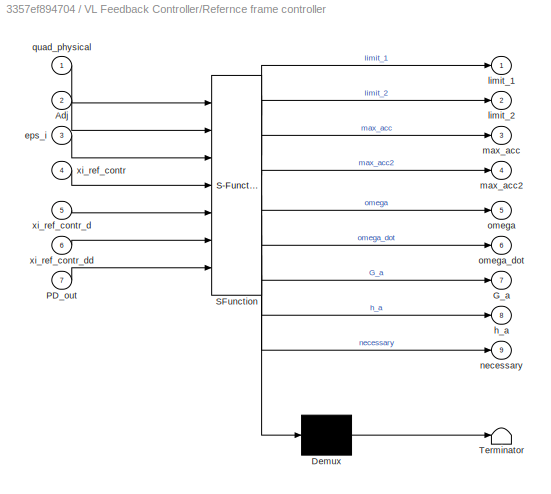
BLOCK [SubSystem] VL Feedback Controller/Refernce frame controller
  ErrorFcn = Stateflow.Translate.translate
  PermitHierarchicalResolution = ExplicitOnly
  Ports = [7, 9]
  RequestExecContextInheritance = off
  SFBlockType = MATLAB Function
  TreatAsAtomicUnit = on
  Variant = off
BLOCK [Demux] VL Feedback Controller/Refernce frame controller/ Demux 
  Outputs = 1
  Ports = [1, 1]
BLOCK [S-Function] VL Feedback Controller/Refernce frame controller/ SFunction 
  EnableBusSupport = on
  FunctionName = sf_sfun
  PortCounts = [7 10]
  Ports = [7, 10]
  SFunctionDeploymentMode = off
  Tag = Stateflow S-Function simulation 8
BLOCK [Terminator] VL Feedback Controller/Refernce frame controller/ Terminator 
BLOCK [Inport] VL Feedback Controller/Refernce frame controller/Adj
  IconDisplay = Port number
  Port = 2
BLOCK [Outport] VL Feedback Controller/Refernce frame controller/G_a
  IconDisplay = Port number
  Port = 7
BLOCK [Inport] VL Feedback Controller/Refernce frame controller/PD_out
  IconDisplay = Port number
  Port = 7
BLOCK [Inport] VL Feedback Controller/Refernce frame controller/eps_i
  IconDisplay = Port number
  Port = 3
BLOCK [Outport] VL Feedback Controller/Refernce frame controller/h_a
  IconDisplay = Port number
  Port = 8
BLOCK [Outport] VL Feedback Controller/Refernce frame controller/limit_1
  IconDisplay = Port number
BLOCK [Outport] VL Feedback Controller/Refernce frame controller/limit_2
  IconDisplay = Port number
  Port = 2
BLOCK [Outport] VL Feedback Controller/Refernce frame controller/max_acc
  IconDisplay = Port number
  Port = 3
BLOCK [Outport] VL Feedback Controller/Refernce frame controller/max_acc2
  IconDisplay = Port number
  Port = 4
BLOCK [Outport] VL Feedback Controller/Refernce frame controller/necessary
  IconDisplay = Port number
  Port = 9
BLOCK [Outport] VL Feedback Controller/Refernce frame controller/omega
  IconDisplay = Port number
  Port = 5
BLOCK [Outport] VL Feedback Controller/Refernce frame controller/omega_dot
  IconDisplay = Port number
  Port = 6
BLOCK [Inport] VL Feedback Controller/Refernce frame controller/quad_physical
  IconDisplay = Port number
BLOCK [Inport] VL Feedback Controller/Refernce frame controller/xi_ref_contr
  IconDisplay = Port number
  Port = 4
BLOCK [Inport] VL Feedback Controller/Refernce frame controller/xi_ref_contr_d
  IconDisplay = Port number
  Port = 5
BLOCK [Inport] VL Feedback Controller/Refernce frame controller/xi_ref_contr_dd
  IconDisplay = Port number
  Port = 6
BLOCK [Sum] VL Feedback Controller/Sum
  IconShape = round
  InputSameDT = off
  Inputs = ++|
  OutDataTypeStr = Inherit: Inherit via internal rule
  Ports = [2, 1]
  SaturateOnIntegerOverflow = off
BLOCK [Sum] VL Feedback Controller/Sum1
  IconShape = round
  InputSameDT = off
  Inputs = ++|
  OutDataTypeStr = Inherit: Inherit via internal rule
  Ports = [2, 1]
  SaturateOnIntegerOverflow = off
BLOCK [Terminator] VL Feedback Controller/Terminator
BLOCK [Terminator] VL Feedback Controller/Terminator1
BLOCK [ToWorkspace] VL Feedback Controller/To Workspace
  FixptAsFi = on
  MaxDataPoints = inf
  Ports = [1]
  SampleTime = -1
  Save2DSignal = 3-D array (concatenate along third dimension)
  SaveFormat = Timeseries
  VariableName = max_acc
BLOCK [ToWorkspace] VL Feedback Controller/To Workspace1
  FixptAsFi = on
  MaxDataPoints = inf
  Ports = [1]
  SampleTime = -1
  Save2DSignal = 3-D array (concatenate along third dimension)
  SaveFormat = Timeseries
  VariableName = max_acc2
BLOCK [ToWorkspace] VL Feedback Controller/To Workspace2
  FixptAsFi = on
  MaxDataPoints = inf
  Ports = [1]
  SampleTime = -1
  Save2DSignal = 3-D array (concatenate along third dimension)
  SaveFormat = Timeseries
  VariableName = limit_acc_dmax
BLOCK [ToWorkspace] VL Feedback Controller/To Workspace3
  FixptAsFi = on
  MaxDataPoints = inf
  Ports = [1]
  SampleTime = -1
  Save2DSignal = 3-D array (concatenate along third dimension)
  SaveFormat = Timeseries
  VariableName = correction
BLOCK [ToWorkspace] VL Feedback Controller/To Workspace4
  FixptAsFi = on
  MaxDataPoints = inf
  Ports = [1]
  SampleTime = -1
  Save2DSignal = 3-D array (concatenate along third dimension)
  SaveFormat = Timeseries
  VariableName = limit_acc_dmin
BLOCK [Inport] VL Feedback Controller/eps_i
  IconDisplay = Port number
  Port = 4
BLOCK [Inport] VL Feedback Controller/xi_ref
  IconDisplay = Port number
BLOCK [Outport] VL Feedback Controller/xi_ref_contr
  IconDisplay = Port number
  Port = 2
BLOCK [Inport] VL Feedback Controller/xi_ref_dd
  IconDisplay = Port number
  Port = 3
BLOCK [Inport] VL Feedback Controller/xi_ref_dot
  IconDisplay = Port number
  Port = 2
BLOCK [Outport] VL Feedback Controller/xi_ref_dot_contr
  IconDisplay = Port number
BLOCK [Concatenate] Vector Concatenate
  Mode = Multidimensional array
  NumInputs = 3
  Ports = [3, 1]
BLOCK [SubSystem] Xi error
  Ports = [2, 1]
  RequestExecContextInheritance = off
  Variant = off
BLOCK [Integrator] Xi error/Integrator
  Ports = [1, 1]
BLOCK [Integrator] Xi error/Integrator1
  Ports = [1, 1]
BLOCK [Outport] Xi error/J_err_xi 
  IconDisplay = Port number
BLOCK [Scope] Xi error/Scope
  Ports = [1]
  ScopeSpecificationString = Simulink.scopes.TimeScopeBlockCfg('CurrentConfiguration', extmgr.ConfigurationSet(extmgr.Configuration('Core','General UI',true),extmgr.Configuration('Core','Source UI',true),extmgr.Configuration('Sources','WiredSimulink',true,'DataLoggingVariableName','ScopeData2'),extmgr.Configuration('Visuals','Time Domain',true,'SerializedDisplays',{struct('MinYLimReal','-0.02793','MaxYLimReal','0.25133','YLab...<+1452ch>
BLOCK [ToWorkspace] Xi error/To Workspace
  FixptAsFi = on
  MaxDataPoints = inf
  Ports = [1]
  SampleTime = -1
  Save2DSignal = 3-D array (concatenate along third dimension)
  SaveFormat = Timeseries
  VariableName = J_xi_a
BLOCK [SubSystem] Xi error/Xi error
  ErrorFcn = Stateflow.Translate.translate
  PermitHierarchicalResolution = ExplicitOnly
  Ports = [2, 2]
  RequestExecContextInheritance = off
  SFBlockType = MATLAB Function
  TreatAsAtomicUnit = on
  Variant = off
BLOCK [Demux] Xi error/Xi error/ Demux 
  Outputs = 1
  Ports = [1, 1]
BLOCK [S-Function] Xi error/Xi error/ SFunction 
  EnableBusSupport = on
  FunctionName = sf_sfun
  PortCounts = [2 3]
  Ports = [2, 3]
  SFunctionDeploymentMode = off
  Tag = Stateflow S-Function simulation 6
BLOCK [Terminator] Xi error/Xi error/ Terminator 
BLOCK [Outport] Xi error/Xi error/err_xi
  IconDisplay = Port number
BLOCK [Outport] Xi error/Xi error/err_xi_alpha
  IconDisplay = Port number
  Port = 2
BLOCK [Inport] Xi error/Xi error/xi_i
  IconDisplay = Port number
  Port = 2
BLOCK [Inport] Xi error/Xi error/xi_ref
  IconDisplay = Port number
BLOCK [Inport] Xi error/xi_i
  IconDisplay = Port number
  Port = 2
BLOCK [Inport] Xi error/xi_ref
  IconDisplay = Port number
BLOCK [Scope] x_pos
  Ports = [1]
  ScopeSpecificationString = Simulink.scopes.TimeScopeBlockCfg('CurrentConfiguration', extmgr.ConfigurationSet(extmgr.Configuration('Core','General UI',true),extmgr.Configuration('Core','Source UI',true),extmgr.Configuration('Sources','WiredSimulink',true,'DataLoggingVariableName','ScopeData3','DataLoggingSaveFormat','StructureWithTime','DataLoggingDecimation','1','DataLoggingDecimateData',true),extmgr.Configuration('Visuals'...<+2019ch>
BLOCK [Scope] y_pos
  Ports = [1]
  ScopeSpecificationString = Simulink.scopes.TimeScopeBlockCfg('CurrentConfiguration', extmgr.ConfigurationSet(extmgr.Configuration('Core','General UI',true),extmgr.Configuration('Core','Source UI',true),extmgr.Configuration('Sources','WiredSimulink',true,'DataLoggingVariableName','ScopeData5','DataLoggingSaveFormat','StructureWithTime','DataLoggingLimitDataPoints',true,'DataLoggingDecimation','1','DataLoggingDecimateData',tr...<+2053ch>
BLOCK [Scope] z_pos
  Ports = [1]
  ScopeSpecificationString = Simulink.scopes.TimeScopeBlockCfg('CurrentConfiguration', extmgr.ConfigurationSet(extmgr.Configuration('Core','General UI',true),extmgr.Configuration('Core','Source UI',true),extmgr.Configuration('Sources','WiredSimulink',true,'DataLoggingVariableName','ScopeData4','DataLoggingSaveFormat','StructureWithTime','DataLoggingDecimation','1','DataLoggingDecimateData',true),extmgr.Configuration('Visuals'...<+1763ch>
ANNOTATION (root): Abbreviations _des desired _i i-th vehicle _ref reference _dot time derivative _dd second order time derivative _err error _pos position _act actual _contr controlled veh vehicle Adj Adjacency matrix Lapl Laplacian matrix x x-position y y-position z z-position xi reference frame VL Virtual Leader r [x y z] - position _rel relative in virtual frame quad quadrotor
ANNOTATION (root): Coloring Convention for Blocks Inputs Green Outputs Light Blue Physical Params Gray Control Params Orange General Math White Subsystems White Integrators White Goto / From Yellow
ANNOTATION (root): Manual Setting Options MSwitch VL-Feedback On / off MSwitch Communication topology MSwitch Refernce Signal Trajectory MSwitch Formation Selection various
ANNOTATION (root): Vehicle_i
LINE Communication topology time variant/Clock1:1 -> Communication topology time variant/Time switch:1
LINE Communication topology time variant/Constant5:1 -> Communication topology time variant/Multiport Switch1:2
LINE Communication topology time variant/Constant6:1 -> Communication topology time variant/Multiport Switch1:3
LINE Communication topology time variant/MATLAB Function:1 -> Communication topology time variant/Adj_noVL:1
LINE Communication topology time variant/MATLAB Function:2 -> Communication topology time variant/Lapl_VL:1
LINE Communication topology time variant/MATLAB Function:3 -> Communication topology time variant/Lapl_noVL:1
LINE Communication topology time variant/Manual Switch:1 -> Communication topology time variant/Multiport Switch1:1
NET Communication topology time variant/Multiport Switch1:1 -> Communication topology time variant/Adj_VL:1, Communication topology time variant/MATLAB Function:1
LINE Communication topology time variant/Select Input:1 -> Communication topology time variant/Manual Switch:1
LINE Communication topology time variant/Time switch:1 -> Communication topology time variant/Manual Switch:2
LINE Communication topology time variant:1 -> Goto1:1
LINE Communication topology time variant:2 -> Goto2:1
LINE Communication topology time variant:3 -> Terminator:1
LINE Communication topology time variant:4 -> Terminator1:1
LINE Correction?:1 -> Demux:1
LINE Demux:1 -> Reference frame consensus:1
NET Demux:2 -> MATLAB Function:1, Reference frame consensus:2, To Workspace4:1, Xi error:1
LINE Desired absolute positions/Desired absolute positions:1 -> Desired absolute positions/x_des:1
LINE Desired absolute positions/Desired absolute positions:2 -> Desired absolute positions/y_des:1
LINE Desired absolute positions/Desired absolute positions:3 -> Desired absolute positions/z_des:1
NET Desired absolute positions/Desired absolute positions:4 -> Desired absolute positions/To Workspace2:1, Desired absolute positions/r_des_abs:1
LINE Desired absolute positions/From:1 -> Desired absolute positions/Desired absolute positions:2
LINE Desired absolute positions/xi_i:1 -> Desired absolute positions/Desired absolute positions:1
LINE Desired absolute positions:1 -> Quadrotor with integrated Position Controler + Consensus:1
LINE Desired absolute positions:2 -> Quadrotor with integrated Position Controler + Consensus:2
LINE Desired absolute positions:3 -> Quadrotor with integrated Position Controler + Consensus:3
LINE Desired absolute positions:4 -> Max distanace consensus:3
LINE From:1 -> MATLAB Function:3
LINE Gain:1 -> To Workspace7:1
NET Integrator:1 -> Sum of Elements1:1, To Workspace1:1
NET MATLAB Function:1 -> Sum of Elements:1, To Workspace6:1
LINE MATLAB Function:2 -> To Workspace2:1
NET MATLAB Function:3 -> Integrator:1, To Workspace8:1
LINE Max distanace consensus/From:1 -> Max distanace consensus/Max Distance:1
LINE Max distanace consensus/Manual Switch:1 -> Max distanace consensus/Max Distance:2
NET Max distanace consensus/Max Distance:1 -> Max distanace consensus/To Workspace2:1, Max distanace consensus/eps_i:1
LINE Max distanace consensus/Max Distance:2 -> Max distanace consensus/To Workspace:1
LINE Max distanace consensus/Max Distance:3 -> Max distanace consensus/Terminator3:1
LINE Max distanace consensus/Max Distance:4 -> Max distanace consensus/Terminator2:1
LINE Max distanace consensus/r_des_abs:1 -> Max distanace consensus/Manual Switch:2
LINE Max distanace consensus/veh_pos:1 -> Max distanace consensus/Manual Switch:1
LINE Max distanace consensus/xi_i:1 -> Max distanace consensus/Max Distance:3
LINE Max distanace consensus:1 -> VL Feedback Controller:4
LINE Mux1:1 -> Correction?:2
LINE Mux:1 -> Correction?:1
LINE Quadrotor with integrated Position Controler + Consensus/PD-Controller Angles + Altitutude/Add4:1 -> Quadrotor with integrated Position Controler + Consensus/PD-Controller Angles + Altitutude/Add:2
LINE Quadrotor with integrated Position Controler + Consensus/PD-Controller Angles + Altitutude/Add5:1 -> Quadrotor with integrated Position Controler + Consensus/PD-Controller Angles + Altitutude/U2:1
LINE Quadrotor with integrated Position Controler + Consensus/PD-Controller Angles + Altitutude/Add6:1 -> Quadrotor with integrated Position Controler + Consensus/PD-Controller Angles + Altitutude/U3:1
LINE Quadrotor with integrated Position Controler + Consensus/PD-Controller Angles + Altitutude/Add7:1 -> Quadrotor with integrated Position Controler + Consensus/PD-Controller Angles + Altitutude/U4:1
LINE Quadrotor with integrated Position Controler + Consensus/PD-Controller Angles + Altitutude/Add:1 -> Quadrotor with integrated Position Controler + Consensus/PD-Controller Angles + Altitutude/Divide:1
LINE Quadrotor with integrated Position Controler + Consensus/PD-Controller Angles + Altitutude/Constant:1 -> Quadrotor with integrated Position Controler + Consensus/PD-Controller Angles + Altitutude/Add:1
LINE Quadrotor with integrated Position Controler + Consensus/PD-Controller Angles + Altitutude/Derivative1:1 -> Quadrotor with integrated Position Controler + Consensus/PD-Controller Angles + Altitutude/kdt:1
LINE Quadrotor with integrated Position Controler + Consensus/PD-Controller Angles + Altitutude/Derivative2:1 -> Quadrotor with integrated Position Controler + Consensus/PD-Controller Angles + Altitutude/kdps:1
LINE Quadrotor with integrated Position Controler + Consensus/PD-Controller Angles + Altitutude/Derivative3:1 -> Quadrotor with integrated Position Controler + Consensus/PD-Controller Angles + Altitutude/kdz:1
LINE Quadrotor with integrated Position Controler + Consensus/PD-Controller Angles + Altitutude/Derivative:1 -> Quadrotor with integrated Position Controler + Consensus/PD-Controller Angles + Altitutude/kdp:1
LINE Quadrotor with integrated Position Controler + Consensus/PD-Controller Angles + Altitutude/Divide:1 -> Quadrotor with integrated Position Controler + Consensus/PD-Controller Angles + Altitutude/Saturation:1
LINE Quadrotor with integrated Position Controler + Consensus/PD-Controller Angles + Altitutude/Product:1 -> Quadrotor with integrated Position Controler + Consensus/PD-Controller Angles + Altitutude/Divide:2
LINE Quadrotor with integrated Position Controler + Consensus/PD-Controller Angles + Altitutude/Saturation:1 -> Quadrotor with integrated Position Controler + Consensus/PD-Controller Angles + Altitutude/U1:1
LINE Quadrotor with integrated Position Controler + Consensus/PD-Controller Angles + Altitutude/cos Phi:1 -> Quadrotor with integrated Position Controler + Consensus/PD-Controller Angles + Altitutude/Product:1
LINE Quadrotor with integrated Position Controler + Consensus/PD-Controller Angles + Altitutude/cos Theta:1 -> Quadrotor with integrated Position Controler + Consensus/PD-Controller Angles + Altitutude/Product:2
LINE Quadrotor with integrated Position Controler + Consensus/PD-Controller Angles + Altitutude/kdp:1 -> Quadrotor with integrated Position Controler + Consensus/PD-Controller Angles + Altitutude/Add5:2
LINE Quadrotor with integrated Position Controler + Consensus/PD-Controller Angles + Altitutude/kdps:1 -> Quadrotor with integrated Position Controler + Consensus/PD-Controller Angles + Altitutude/Add7:2
LINE Quadrotor with integrated Position Controler + Consensus/PD-Controller Angles + Altitutude/kdt:1 -> Quadrotor with integrated Position Controler + Consensus/PD-Controller Angles + Altitutude/Add6:2
LINE Quadrotor with integrated Position Controler + Consensus/PD-Controller Angles + Altitutude/kdz:1 -> Quadrotor with integrated Position Controler + Consensus/PD-Controller Angles + Altitutude/Add4:2
LINE Quadrotor with integrated Position Controler + Consensus/PD-Controller Angles + Altitutude/kpp:1 -> Quadrotor with integrated Position Controler + Consensus/PD-Controller Angles + Altitutude/Add5:1
LINE Quadrotor with integrated Position Controler + Consensus/PD-Controller Angles + Altitutude/kpps:1 -> Quadrotor with integrated Position Controler + Consensus/PD-Controller Angles + Altitutude/Add7:1
LINE Quadrotor with integrated Position Controler + Consensus/PD-Controller Angles + Altitutude/kpt:1 -> Quadrotor with integrated Position Controler + Consensus/PD-Controller Angles + Altitutude/Add6:1
LINE Quadrotor with integrated Position Controler + Consensus/PD-Controller Angles + Altitutude/kpz:1 -> Quadrotor with integrated Position Controler + Consensus/PD-Controller Angles + Altitutude/Add4:1
NET Quadrotor with integrated Position Controler + Consensus/PD-Controller Angles + Altitutude/phi:1 -> Quadrotor with integrated Position Controler + Consensus/PD-Controller Angles + Altitutude/Derivative:1, Quadrotor with integrated Position Controler + Consensus/PD-Controller Angles + Altitutude/cos Phi:1, Quadrotor with integrated Position Controler + Consensus/PD-Controller Angles + Altitutude/phi_err:2
LINE Quadrotor with integrated Position Controler + Consensus/PD-Controller Angles + Altitutude/phi_des:1 -> Quadrotor with integrated Position Controler + Consensus/PD-Controller Angles + Altitutude/phi_err:1
LINE Quadrotor with integrated Position Controler + Consensus/PD-Controller Angles + Altitutude/phi_err:1 -> Quadrotor with integrated Position Controler + Consensus/PD-Controller Angles + Altitutude/kpp:1
NET Quadrotor with integrated Position Controler + Consensus/PD-Controller Angles + Altitutude/psi:1 -> Quadrotor with integrated Position Controler + Consensus/PD-Controller Angles + Altitutude/Derivative2:1, Quadrotor with integrated Position Controler + Consensus/PD-Controller Angles + Altitutude/psi_err:2
LINE Quadrotor with integrated Position Controler + Consensus/PD-Controller Angles + Altitutude/psi_des:1 -> Quadrotor with integrated Position Controler + Consensus/PD-Controller Angles + Altitutude/psi_err:1
LINE Quadrotor with integrated Position Controler + Consensus/PD-Controller Angles + Altitutude/psi_err:1 -> Quadrotor with integrated Position Controler + Consensus/PD-Controller Angles + Altitutude/kpps:1
NET Quadrotor with integrated Position Controler + Consensus/PD-Controller Angles + Altitutude/theta:1 -> Quadrotor with integrated Position Controler + Consensus/PD-Controller Angles + Altitutude/Derivative1:1, Quadrotor with integrated Position Controler + Consensus/PD-Controller Angles + Altitutude/cos Theta:1, Quadrotor with integrated Position Controler + Consensus/PD-Controller Angles + Altitutude/theta_err:2
LINE Quadrotor with integrated Position Controler + Consensus/PD-Controller Angles + Altitutude/theta_des:1 -> Quadrotor with integrated Position Controler + Consensus/PD-Controller Angles + Altitutude/theta_err:1
LINE Quadrotor with integrated Position Controler + Consensus/PD-Controller Angles + Altitutude/theta_err:1 -> Quadrotor with integrated Position Controler + Consensus/PD-Controller Angles + Altitutude/kpt:1
NET Quadrotor with integrated Position Controler + Consensus/PD-Controller Angles + Altitutude/z:1 -> Quadrotor with integrated Position Controler + Consensus/PD-Controller Angles + Altitutude/Derivative3:1, Quadrotor with integrated Position Controler + Consensus/PD-Controller Angles + Altitutude/z_err:2
LINE Quadrotor with integrated Position Controler + Consensus/PD-Controller Angles + Altitutude/z_des:1 -> Quadrotor with integrated Position Controler + Consensus/PD-Controller Angles + Altitutude/z_err:1
LINE Quadrotor with integrated Position Controler + Consensus/PD-Controller Angles + Altitutude/z_err:1 -> Quadrotor with integrated Position Controler + Consensus/PD-Controller Angles + Altitutude/kpz:1
LINE Quadrotor with integrated Position Controler + Consensus/PD-Controller Angles + Altitutude:1 -> Quadrotor with integrated Position Controler + Consensus/Quadrotor:1
LINE Quadrotor with integrated Position Controler + Consensus/PD-Controller Angles + Altitutude:2 -> Quadrotor with integrated Position Controler + Consensus/Quadrotor:2
LINE Quadrotor with integrated Position Controler + Consensus/PD-Controller Angles + Altitutude:3 -> Quadrotor with integrated Position Controler + Consensus/Quadrotor:3
LINE Quadrotor with integrated Position Controler + Consensus/PD-Controller Angles + Altitutude:4 -> Quadrotor with integrated Position Controler + Consensus/Quadrotor:4
LINE Quadrotor with integrated Position Controler + Consensus/PD-Controller Position/Add1:1 -> Quadrotor with integrated Position Controler + Consensus/PD-Controller Position/Saturation phi:1
LINE Quadrotor with integrated Position Controler + Consensus/PD-Controller Position/Add5:1 -> Quadrotor with integrated Position Controler + Consensus/PD-Controller Position/Saturation theta:1
LINE Quadrotor with integrated Position Controler + Consensus/PD-Controller Position/Derivative1:1 -> Quadrotor with integrated Position Controler + Consensus/PD-Controller Position/kdy:1
LINE Quadrotor with integrated Position Controler + Consensus/PD-Controller Position/Derivative:1 -> Quadrotor with integrated Position Controler + Consensus/PD-Controller Position/kdx:1
LINE Quadrotor with integrated Position Controler + Consensus/PD-Controller Position/Saturation phi:1 -> Quadrotor with integrated Position Controler + Consensus/PD-Controller Position/phi_des:1
LINE Quadrotor with integrated Position Controler + Consensus/PD-Controller Position/Saturation theta:1 -> Quadrotor with integrated Position Controler + Consensus/PD-Controller Position/theta_des:1
LINE Quadrotor with integrated Position Controler + Consensus/PD-Controller Position/kdx:1 -> Quadrotor with integrated Position Controler + Consensus/PD-Controller Position/Add5:2
LINE Quadrotor with integrated Position Controler + Consensus/PD-Controller Position/kdy:1 -> Quadrotor with integrated Position Controler + Consensus/PD-Controller Position/Add1:2
LINE Quadrotor with integrated Position Controler + Consensus/PD-Controller Position/kpx:1 -> Quadrotor with integrated Position Controler + Consensus/PD-Controller Position/Add5:1
LINE Quadrotor with integrated Position Controler + Consensus/PD-Controller Position/kpy:1 -> Quadrotor with integrated Position Controler + Consensus/PD-Controller Position/Add1:1
NET Quadrotor with integrated Position Controler + Consensus/PD-Controller Position/x:1 -> Quadrotor with integrated Position Controler + Consensus/PD-Controller Position/Derivative:1, Quadrotor with integrated Position Controler + Consensus/PD-Controller Position/x_err:2
LINE Quadrotor with integrated Position Controler + Consensus/PD-Controller Position/x_des:1 -> Quadrotor with integrated Position Controler + Consensus/PD-Controller Position/x_err:1
LINE Quadrotor with integrated Position Controler + Consensus/PD-Controller Position/x_err:1 -> Quadrotor with integrated Position Controler + Consensus/PD-Controller Position/kpx:1
NET Quadrotor with integrated Position Controler + Consensus/PD-Controller Position/y:1 -> Quadrotor with integrated Position Controler + Consensus/PD-Controller Position/Derivative1:1, Quadrotor with integrated Position Controler + Consensus/PD-Controller Position/y_err:2
LINE Quadrotor with integrated Position Controler + Consensus/PD-Controller Position/y_des:1 -> Quadrotor with integrated Position Controler + Consensus/PD-Controller Position/y_err:1
LINE Quadrotor with integrated Position Controler + Consensus/PD-Controller Position/y_err:1 -> Quadrotor with integrated Position Controler + Consensus/PD-Controller Position/kpy:1
LINE Quadrotor with integrated Position Controler + Consensus/PD-Controller Position:1 -> Quadrotor with integrated Position Controler + Consensus/PD-Controller Angles + Altitutude:4
LINE Quadrotor with integrated Position Controler + Consensus/PD-Controller Position:2 -> Quadrotor with integrated Position Controler + Consensus/PD-Controller Angles + Altitutude:5
LINE Quadrotor with integrated Position Controler + Consensus/Quadrotor/U1:1 -> Quadrotor with integrated Position Controler + Consensus/Quadrotor/displacement:4
LINE Quadrotor with integrated Position Controler + Consensus/Quadrotor/U2:1 -> Quadrotor with integrated Position Controler + Consensus/Quadrotor/phi_dot:1
LINE Quadrotor with integrated Position Controler + Consensus/Quadrotor/U3:1 -> Quadrotor with integrated Position Controler + Consensus/Quadrotor/theta_dot:1
LINE Quadrotor with integrated Position Controler + Consensus/Quadrotor/U4:1 -> Quadrotor with integrated Position Controler + Consensus/Quadrotor/psi_dot:1
NET Quadrotor with integrated Position Controler + Consensus/Quadrotor/displacement/Divide:1 -> Quadrotor with integrated Position Controler + Consensus/Quadrotor/displacement/Product of Elements5:1, Quadrotor with integrated Position Controler + Consensus/Quadrotor/displacement/Product of Elements6:1, Quadrotor with integrated Position Controler + Consensus/Quadrotor/displacement/Product of Elements7:1
LINE Quadrotor with integrated Position Controler + Consensus/Quadrotor/displacement/Gravity:1 -> Quadrotor with integrated Position Controler + Consensus/Quadrotor/displacement/uy1:1
LINE Quadrotor with integrated Position Controler + Consensus/Quadrotor/displacement/Product of Elements1:1 -> Quadrotor with integrated Position Controler + Consensus/Quadrotor/displacement/ux:2
LINE Quadrotor with integrated Position Controler + Consensus/Quadrotor/displacement/Product of Elements2:1 -> Quadrotor with integrated Position Controler + Consensus/Quadrotor/displacement/uy:1
LINE Quadrotor with integrated Position Controler + Consensus/Quadrotor/displacement/Product of Elements3:1 -> Quadrotor with integrated Position Controler + Consensus/Quadrotor/displacement/uy:2
LINE Quadrotor with integrated Position Controler + Consensus/Quadrotor/displacement/Product of Elements4:1 -> Quadrotor with integrated Position Controler + Consensus/Quadrotor/displacement/Product of Elements7:2
LINE Quadrotor with integrated Position Controler + Consensus/Quadrotor/displacement/Product of Elements5:1 -> Quadrotor with integrated Position Controler + Consensus/Quadrotor/displacement/x_dot_dot:1
LINE Quadrotor with integrated Position Controler + Consensus/Quadrotor/displacement/Product of Elements6:1 -> Quadrotor with integrated Position Controler + Consensus/Quadrotor/displacement/y_dot_dot:1
LINE Quadrotor with integrated Position Controler + Consensus/Quadrotor/displacement/Product of Elements7:1 -> Quadrotor with integrated Position Controler + Consensus/Quadrotor/displacement/uy1:2
LINE Quadrotor with integrated Position Controler + Consensus/Quadrotor/displacement/Product of Elements:1 -> Quadrotor with integrated Position Controler + Consensus/Quadrotor/displacement/ux:1
LINE Quadrotor with integrated Position Controler + Consensus/Quadrotor/displacement/U1:1 -> Quadrotor with integrated Position Controler + Consensus/Quadrotor/displacement/Divide:1
NET Quadrotor with integrated Position Controler + Consensus/Quadrotor/displacement/cos Phi:1 -> Quadrotor with integrated Position Controler + Consensus/Quadrotor/displacement/Product of Elements2:1, Quadrotor with integrated Position Controler + Consensus/Quadrotor/displacement/Product of Elements4:1, Quadrotor with integrated Position Controler + Consensus/Quadrotor/displacement/Product of Elements:1
NET Quadrotor with integrated Position Controler + Consensus/Quadrotor/displacement/cos Psi:1 -> Quadrotor with integrated Position Controler + Consensus/Quadrotor/displacement/Product of Elements3:2, Quadrotor with integrated Position Controler + Consensus/Quadrotor/displacement/Product of Elements:3
LINE Quadrotor with integrated Position Controler + Consensus/Quadrotor/displacement/cos Theta:1 -> Quadrotor with integrated Position Controler + Consensus/Quadrotor/displacement/Product of Elements4:2
LINE Quadrotor with integrated Position Controler + Consensus/Quadrotor/displacement/m:1 -> Quadrotor with integrated Position Controler + Consensus/Quadrotor/displacement/Divide:2
NET Quadrotor with integrated Position Controler + Consensus/Quadrotor/displacement/phi:1 -> Quadrotor with integrated Position Controler + Consensus/Quadrotor/displacement/cos Phi:1, Quadrotor with integrated Position Controler + Consensus/Quadrotor/displacement/sin Phi:1
NET Quadrotor with integrated Position Controler + Consensus/Quadrotor/displacement/psi:1 -> Quadrotor with integrated Position Controler + Consensus/Quadrotor/displacement/cos Psi:1, Quadrotor with integrated Position Controler + Consensus/Quadrotor/displacement/sin Psi:1
NET Quadrotor with integrated Position Controler + Consensus/Quadrotor/displacement/sin Phi:1 -> Quadrotor with integrated Position Controler + Consensus/Quadrotor/displacement/Product of Elements1:1, Quadrotor with integrated Position Controler + Consensus/Quadrotor/displacement/Product of Elements3:1
NET Quadrotor with integrated Position Controler + Consensus/Quadrotor/displacement/sin Psi:1 -> Quadrotor with integrated Position Controler + Consensus/Quadrotor/displacement/Product of Elements1:2, Quadrotor with integrated Position Controler + Consensus/Quadrotor/displacement/Product of Elements2:3
NET Quadrotor with integrated Position Controler + Consensus/Quadrotor/displacement/sin Theta:1 -> Quadrotor with integrated Position Controler + Consensus/Quadrotor/displacement/Product of Elements2:2, Quadrotor with integrated Position Controler + Consensus/Quadrotor/displacement/Product of Elements:2
NET Quadrotor with integrated Position Controler + Consensus/Quadrotor/displacement/theta:1 -> Quadrotor with integrated Position Controler + Consensus/Quadrotor/displacement/cos Theta:1, Quadrotor with integrated Position Controler + Consensus/Quadrotor/displacement/sin Theta:1
LINE Quadrotor with integrated Position Controler + Consensus/Quadrotor/displacement/ux:1 -> Quadrotor with integrated Position Controler + Consensus/Quadrotor/displacement/Product of Elements5:2
LINE Quadrotor with integrated Position Controler + Consensus/Quadrotor/displacement/uy1:1 -> Quadrotor with integrated Position Controler + Consensus/Quadrotor/displacement/z_dot_dot:1
LINE Quadrotor with integrated Position Controler + Consensus/Quadrotor/displacement/uy:1 -> Quadrotor with integrated Position Controler + Consensus/Quadrotor/displacement/Product of Elements6:2
LINE Quadrotor with integrated Position Controler + Consensus/Quadrotor/displacement:1 -> Quadrotor with integrated Position Controler + Consensus/Quadrotor/translational dynamics:1
LINE Quadrotor with integrated Position Controler + Consensus/Quadrotor/displacement:2 -> Quadrotor with integrated Position Controler + Consensus/Quadrotor/translational dynamics:2
LINE Quadrotor with integrated Position Controler + Consensus/Quadrotor/displacement:3 -> Quadrotor with integrated Position Controler + Consensus/Quadrotor/translational dynamics:3
NET Quadrotor with integrated Position Controler + Consensus/Quadrotor/phi:1 -> Quadrotor with integrated Position Controler + Consensus/Quadrotor/Phi:1, Quadrotor with integrated Position Controler + Consensus/Quadrotor/displacement:1
LINE Quadrotor with integrated Position Controler + Consensus/Quadrotor/phi_dot:1 -> Quadrotor with integrated Position Controler + Consensus/Quadrotor/phi:1
NET Quadrotor with integrated Position Controler + Consensus/Quadrotor/psi:1 -> Quadrotor with integrated Position Controler + Consensus/Quadrotor/Psi:1, Quadrotor with integrated Position Controler + Consensus/Quadrotor/displacement:3
LINE Quadrotor with integrated Position Controler + Consensus/Quadrotor/psi_dot:1 -> Quadrotor with integrated Position Controler + Consensus/Quadrotor/psi:1
NET Quadrotor with integrated Position Controler + Consensus/Quadrotor/theta:1 -> Quadrotor with integrated Position Controler + Consensus/Quadrotor/Theta:1, Quadrotor with integrated Position Controler + Consensus/Quadrotor/displacement:2
LINE Quadrotor with integrated Position Controler + Consensus/Quadrotor/theta_dot:1 -> Quadrotor with integrated Position Controler + Consensus/Quadrotor/theta:1
LINE Quadrotor with integrated Position Controler + Consensus/Quadrotor/translational dynamics/Act X:1 -> Quadrotor with integrated Position Controler + Consensus/Quadrotor/translational dynamics/X:1
LINE Quadrotor with integrated Position Controler + Consensus/Quadrotor/translational dynamics/Act Y:1 -> Quadrotor with integrated Position Controler + Consensus/Quadrotor/translational dynamics/Y:1
LINE Quadrotor with integrated Position Controler + Consensus/Quadrotor/translational dynamics/Act Z:1 -> Quadrotor with integrated Position Controler + Consensus/Quadrotor/translational dynamics/Z:1
LINE Quadrotor with integrated Position Controler + Consensus/Quadrotor/translational dynamics/Add1:1 -> Quadrotor with integrated Position Controler + Consensus/Quadrotor/translational dynamics/Y dot:1
LINE Quadrotor with integrated Position Controler + Consensus/Quadrotor/translational dynamics/Add2:1 -> Quadrotor with integrated Position Controler + Consensus/Quadrotor/translational dynamics/Z dot:1
LINE Quadrotor with integrated Position Controler + Consensus/Quadrotor/translational dynamics/Add:1 -> Quadrotor with integrated Position Controler + Consensus/Quadrotor/translational dynamics/X dot:1
LINE Quadrotor with integrated Position Controler + Consensus/Quadrotor/translational dynamics/Aero Drag x/Abs:1 -> Quadrotor with integrated Position Controler + Consensus/Quadrotor/translational dynamics/Aero Drag x/Product:2
LINE Quadrotor with integrated Position Controler + Consensus/Quadrotor/translational dynamics/Aero Drag x/Gain:1 -> Quadrotor with integrated Position Controler + Consensus/Quadrotor/translational dynamics/Aero Drag x/drag_force:1
LINE Quadrotor with integrated Position Controler + Consensus/Quadrotor/translational dynamics/Aero Drag x/Product:1 -> Quadrotor with integrated Position Controler + Consensus/Quadrotor/translational dynamics/Aero Drag x/Gain:1
NET Quadrotor with integrated Position Controler + Consensus/Quadrotor/translational dynamics/Aero Drag x/velocity:1 -> Quadrotor with integrated Position Controler + Consensus/Quadrotor/translational dynamics/Aero Drag x/Abs:1, Quadrotor with integrated Position Controler + Consensus/Quadrotor/translational dynamics/Aero Drag x/Product:1
LINE Quadrotor with integrated Position Controler + Consensus/Quadrotor/translational dynamics/Aero Drag x:1 -> Quadrotor with integrated Position Controler + Consensus/Quadrotor/translational dynamics/Add:1
LINE Quadrotor with integrated Position Controler + Consensus/Quadrotor/translational dynamics/Aero Drag y/Abs:1 -> Quadrotor with integrated Position Controler + Consensus/Quadrotor/translational dynamics/Aero Drag y/Product:2
LINE Quadrotor with integrated Position Controler + Consensus/Quadrotor/translational dynamics/Aero Drag y/Gain:1 -> Quadrotor with integrated Position Controler + Consensus/Quadrotor/translational dynamics/Aero Drag y/drag_force:1
LINE Quadrotor with integrated Position Controler + Consensus/Quadrotor/translational dynamics/Aero Drag y/Product:1 -> Quadrotor with integrated Position Controler + Consensus/Quadrotor/translational dynamics/Aero Drag y/Gain:1
NET Quadrotor with integrated Position Controler + Consensus/Quadrotor/translational dynamics/Aero Drag y/velocity:1 -> Quadrotor with integrated Position Controler + Consensus/Quadrotor/translational dynamics/Aero Drag y/Abs:1, Quadrotor with integrated Position Controler + Consensus/Quadrotor/translational dynamics/Aero Drag y/Product:1
LINE Quadrotor with integrated Position Controler + Consensus/Quadrotor/translational dynamics/Aero Drag y:1 -> Quadrotor with integrated Position Controler + Consensus/Quadrotor/translational dynamics/Add1:1
LINE Quadrotor with integrated Position Controler + Consensus/Quadrotor/translational dynamics/Aero Drag z/Abs:1 -> Quadrotor with integrated Position Controler + Consensus/Quadrotor/translational dynamics/Aero Drag z/Product:2
LINE Quadrotor with integrated Position Controler + Consensus/Quadrotor/translational dynamics/Aero Drag z/Gain:1 -> Quadrotor with integrated Position Controler + Consensus/Quadrotor/translational dynamics/Aero Drag z/drag_force:1
LINE Quadrotor with integrated Position Controler + Consensus/Quadrotor/translational dynamics/Aero Drag z/Product:1 -> Quadrotor with integrated Position Controler + Consensus/Quadrotor/translational dynamics/Aero Drag z/Gain:1
NET Quadrotor with integrated Position Controler + Consensus/Quadrotor/translational dynamics/Aero Drag z/velocity:1 -> Quadrotor with integrated Position Controler + Consensus/Quadrotor/translational dynamics/Aero Drag z/Abs:1, Quadrotor with integrated Position Controler + Consensus/Quadrotor/translational dynamics/Aero Drag z/Product:1
LINE Quadrotor with integrated Position Controler + Consensus/Quadrotor/translational dynamics/Aero Drag z:1 -> Quadrotor with integrated Position Controler + Consensus/Quadrotor/translational dynamics/Add2:2
NET Quadrotor with integrated Position Controler + Consensus/Quadrotor/translational dynamics/X dot:1 -> Quadrotor with integrated Position Controler + Consensus/Quadrotor/translational dynamics/Act X:1, Quadrotor with integrated Position Controler + Consensus/Quadrotor/translational dynamics/Aero Drag x:1, Quadrotor with integrated Position Controler + Consensus/Quadrotor/translational dynamics/Scope2:1
NET Quadrotor with integrated Position Controler + Consensus/Quadrotor/translational dynamics/Y dot:1 -> Quadrotor with integrated Position Controler + Consensus/Quadrotor/translational dynamics/Act Y:1, Quadrotor with integrated Position Controler + Consensus/Quadrotor/translational dynamics/Aero Drag y:1, Quadrotor with integrated Position Controler + Consensus/Quadrotor/translational dynamics/Scope1:1
NET Quadrotor with integrated Position Controler + Consensus/Quadrotor/translational dynamics/Z dot:1 -> Quadrotor with integrated Position Controler + Consensus/Quadrotor/translational dynamics/Act Z:1, Quadrotor with integrated Position Controler + Consensus/Quadrotor/translational dynamics/Aero Drag z:1, Quadrotor with integrated Position Controler + Consensus/Quadrotor/translational dynamics/Scope:1
LINE Quadrotor with integrated Position Controler + Consensus/Quadrotor/translational dynamics/x_dot_dot:1 -> Quadrotor with integrated Position Controler + Consensus/Quadrotor/translational dynamics/Add:2
LINE Quadrotor with integrated Position Controler + Consensus/Quadrotor/translational dynamics/y_dot_dot:1 -> Quadrotor with integrated Position Controler + Consensus/Quadrotor/translational dynamics/Add1:2
LINE Quadrotor with integrated Position Controler + Consensus/Quadrotor/translational dynamics/z_dot_dot:1 -> Quadrotor with integrated Position Controler + Consensus/Quadrotor/translational dynamics/Add2:1
LINE Quadrotor with integrated Position Controler + Consensus/Quadrotor/translational dynamics:1 -> Quadrotor with integrated Position Controler + Consensus/Quadrotor/X:1
LINE Quadrotor with integrated Position Controler + Consensus/Quadrotor/translational dynamics:2 -> Quadrotor with integrated Position Controler + Consensus/Quadrotor/Y:1
LINE Quadrotor with integrated Position Controler + Consensus/Quadrotor/translational dynamics:3 -> Quadrotor with integrated Position Controler + Consensus/Quadrotor/Z:1
LINE Quadrotor with integrated Position Controler + Consensus/Quadrotor:1 -> Quadrotor with integrated Position Controler + Consensus/PD-Controller Angles + Altitutude:1
LINE Quadrotor with integrated Position Controler + Consensus/Quadrotor:2 -> Quadrotor with integrated Position Controler + Consensus/PD-Controller Angles + Altitutude:2
LINE Quadrotor with integrated Position Controler + Consensus/Quadrotor:3 -> Quadrotor with integrated Position Controler + Consensus/PD-Controller Angles + Altitutude:3
NET Quadrotor with integrated Position Controler + Consensus/Quadrotor:4 -> Quadrotor with integrated Position Controler + Consensus/PD-Controller Position:3, Quadrotor with integrated Position Controler + Consensus/x_pos:1
NET Quadrotor with integrated Position Controler + Consensus/Quadrotor:5 -> Quadrotor with integrated Position Controler + Consensus/PD-Controller Position:4, Quadrotor with integrated Position Controler + Consensus/y_pos:1
NET Quadrotor with integrated Position Controler + Consensus/Quadrotor:6 -> Quadrotor with integrated Position Controler + Consensus/PD-Controller Angles + Altitutude:8, Quadrotor with integrated Position Controler + Consensus/z_pos:1
LINE Quadrotor with integrated Position Controler + Consensus/psi_fixed:1 -> Quadrotor with integrated Position Controler + Consensus/PD-Controller Angles + Altitutude:6
LINE Quadrotor with integrated Position Controler + Consensus/x_des:1 -> Quadrotor with integrated Position Controler + Consensus/PD-Controller Position:1
LINE Quadrotor with integrated Position Controler + Consensus/y_des:1 -> Quadrotor with integrated Position Controler + Consensus/PD-Controller Position:2
LINE Quadrotor with integrated Position Controler + Consensus/z_des:1 -> Quadrotor with integrated Position Controler + Consensus/PD-Controller Angles + Altitutude:7
NET Quadrotor with integrated Position Controler + Consensus:1 -> Vector Concatenate:1, x_pos:1
NET Quadrotor with integrated Position Controler + Consensus:2 -> Vector Concatenate:2, y_pos:1
NET Quadrotor with integrated Position Controler + Consensus:3 -> Vector Concatenate:3, z_pos:1
NET Reference Signal/Integrator1:1 -> Reference Signal/Integrator:1, Reference Signal/xi_ref_dot:1
NET Reference Signal/Integrator:1 -> Reference Signal/Scope:1, Reference Signal/To Workspace:1, Reference Signal/xi_ref:1
NET Reference Signal/Mux2:1 -> Reference Signal/Integrator1:1, Reference Signal/xi_ref_dd:1
LINE Reference Signal/accelerations/Constant1:1 -> Reference Signal/accelerations/Manual Switch:2
LINE Reference Signal/accelerations/Manual Switch1:1 -> Reference Signal/accelerations/x_ref_dd:1
LINE Reference Signal/accelerations/Manual Switch:1 -> Reference Signal/accelerations/y_ref_dd:1
LINE Reference Signal/accelerations/Step1:1 -> Reference Signal/accelerations/Sum1:1
LINE Reference Signal/accelerations/Step2:1 -> Reference Signal/accelerations/Sum1:2
LINE Reference Signal/accelerations/Step3:1 -> Reference Signal/accelerations/Sum2:1
LINE Reference Signal/accelerations/Step4:1 -> Reference Signal/accelerations/Sum2:2
LINE Reference Signal/accelerations/Step5:1 -> Reference Signal/accelerations/Sum3:2
LINE Reference Signal/accelerations/Step:1 -> Reference Signal/accelerations/Sum3:1
LINE Reference Signal/accelerations/Sum1:1 -> Reference Signal/accelerations/Manual Switch1:1
LINE Reference Signal/accelerations/Sum2:1 -> Reference Signal/accelerations/Sum:1
LINE Reference Signal/accelerations/Sum3:1 -> Reference Signal/accelerations/Sum:2
LINE Reference Signal/accelerations/Sum:1 -> Reference Signal/accelerations/z_ref_dd:1
LINE Reference Signal/accelerations/x_dot_c_ref = v_c_ref*cos(theta_c_ref):1 -> Reference Signal/accelerations/Manual Switch1:2
LINE Reference Signal/accelerations/y_dot_c_ref = v_c_ref_sin(thete_c_ref):1 -> Reference Signal/accelerations/Manual Switch:1
LINE Reference Signal/accelerations:1 -> Reference Signal/Mux2:1
LINE Reference Signal/accelerations:2 -> Reference Signal/Mux2:2
LINE Reference Signal/accelerations:3 -> Reference Signal/Mux2:3
LINE Reference Signal/angular acclerations/Constant:1 -> Reference Signal/angular acclerations/Manual Switch2:2
LINE Reference Signal/angular acclerations/Manual Switch1:1 -> Reference Signal/angular acclerations/alpha_ref_dd:1
LINE Reference Signal/angular acclerations/Manual Switch2:1 -> Reference Signal/angular acclerations/gamma_ref_dd:1
LINE Reference Signal/angular acclerations/Manual Switch:1 -> Reference Signal/angular acclerations/beta_ref_dd:1
LINE Reference Signal/angular acclerations/Step1:1 -> Reference Signal/angular acclerations/Sum2:1
LINE Reference Signal/angular acclerations/Step2:1 -> Reference Signal/angular acclerations/Sum1:1
LINE Reference Signal/angular acclerations/Step3:1 -> Reference Signal/angular acclerations/Sum1:2
LINE Reference Signal/angular acclerations/Step4:1 -> Reference Signal/angular acclerations/Sum1:3
LINE Reference Signal/angular acclerations/Step5:1 -> Reference Signal/angular acclerations/Sum2:2
LINE Reference Signal/angular acclerations/Step6:1 -> Reference Signal/angular acclerations/Sum3:2
LINE Reference Signal/angular acclerations/Step:1 -> Reference Signal/angular acclerations/Sum3:1
LINE Reference Signal/angular acclerations/Sum1:1 -> Reference Signal/angular acclerations/Manual Switch:2
LINE Reference Signal/angular acclerations/Sum2:1 -> Reference Signal/angular acclerations/Sum:1
LINE Reference Signal/angular acclerations/Sum3:1 -> Reference Signal/angular acclerations/Sum:2
LINE Reference Signal/angular acclerations/Sum:1 -> Reference Signal/angular acclerations/Manual Switch1:2
LINE Reference Signal/angular acclerations/alpha_dot_c_ref:1 -> Reference Signal/angular acclerations/Manual Switch1:1
LINE Reference Signal/angular acclerations/beta_dot_c_ref:1 -> Reference Signal/angular acclerations/Manual Switch:1
LINE Reference Signal/angular acclerations/gamma_dot_c_ref:1 -> Reference Signal/angular acclerations/Manual Switch2:1
LINE Reference Signal/angular acclerations:1 -> Reference Signal/Mux2:4
LINE Reference Signal/angular acclerations:2 -> Reference Signal/Mux2:5
LINE Reference Signal/angular acclerations:3 -> Reference Signal/Mux2:6
NET Reference Signal:1 -> Mux:1, VL Feedback Controller:2
NET Reference Signal:2 -> Mux:2, VL Feedback Controller:1
LINE Reference Signal:3 -> VL Feedback Controller:3
NET Reference frame consensus/Consensus:1 -> Reference frame consensus/Integrator:1, Reference frame consensus/Memory:1
LINE Reference frame consensus/From2:1 -> Reference frame consensus/Consensus:1
NET Reference frame consensus/Integrator:1 -> Reference frame consensus/Consensus:4, Reference frame consensus/To Workspace:1, Reference frame consensus/xi_i:1
LINE Reference frame consensus/Memory:1 -> Reference frame consensus/Consensus:5
LINE Reference frame consensus/xi_ref:1 -> Reference frame consensus/Consensus:3
LINE Reference frame consensus/xi_ref_dot:1 -> Reference frame consensus/Consensus:2
NET Reference frame consensus:1 -> Desired absolute positions:1, Max distanace consensus:2, Xi error:2
LINE Relative positions time variant/Clock:1 -> Relative positions time variant/Time variable output selection:1
LINE Relative positions time variant/Formation 1:1 -> Relative positions time variant/Multiport Switch:2
LINE Relative positions time variant/Formation 2:1 -> Relative positions time variant/Multiport Switch:3
LINE Relative positions time variant/Formation 3:1 -> Relative positions time variant/Multiport Switch:4
LINE Relative positions time variant/MSwitch1:1 -> Relative positions time variant/Multiport Switch:1
LINE Relative positions time variant/Multiport Switch:1 -> Relative positions time variant/r_rel_des:1
LINE Relative positions time variant/Static output selection:1 -> Relative positions time variant/MSwitch1:1
LINE Relative positions time variant/Time variable output selection:1 -> Relative positions time variant/MSwitch1:2
LINE Relative positions time variant:1 -> Goto:1
LINE Sum of Elements1:1 -> To Workspace:1
LINE Sum of Elements:1 -> Gain:1
LINE VL Feedback Controller/Constant:1 -> VL Feedback Controller/Refernce frame controller:1
LINE VL Feedback Controller/From1:1 -> VL Feedback Controller/Refernce frame controller:2
NET VL Feedback Controller/Integrator1:1 -> VL Feedback Controller/PD-Control:3, VL Feedback Controller/Refernce frame controller:4, VL Feedback Controller/xi_ref_contr:1
NET VL Feedback Controller/Integrator2:1 -> VL Feedback Controller/Integrator1:1, VL Feedback Controller/PD-Control:4, VL Feedback Controller/Refernce frame controller:5, VL Feedback Controller/xi_ref_dot_contr:1
LINE VL Feedback Controller/Memory:1 -> VL Feedback Controller/Refernce frame controller:6
LINE VL Feedback Controller/Optimization On = 1:1 -> VL Feedback Controller/Optimization Solve?:2
LINE VL Feedback Controller/Optimization Solve?:1 -> VL Feedback Controller/Optimizer:3
NET VL Feedback Controller/Optimizer:1 -> VL Feedback Controller/Sum:1, VL Feedback Controller/To Workspace3:1
LINE VL Feedback Controller/PD-Control/Add6:1 -> VL Feedback Controller/PD-Control/u^r:1
LINE VL Feedback Controller/PD-Control/kdt:1 -> VL Feedback Controller/PD-Control/Add6:2
LINE VL Feedback Controller/PD-Control/kpt:1 -> VL Feedback Controller/PD-Control/Add6:1
LINE VL Feedback Controller/PD-Control/xi_ref:1 -> VL Feedback Controller/PD-Control/xi_ref_err:1
LINE VL Feedback Controller/PD-Control/xi_ref_contr:1 -> VL Feedback Controller/PD-Control/xi_ref_err:2
LINE VL Feedback Controller/PD-Control/xi_ref_contr_dot:1 -> VL Feedback Controller/PD-Control/xi_ref_dot_err:2
LINE VL Feedback Controller/PD-Control/xi_ref_dot:1 -> VL Feedback Controller/PD-Control/xi_ref_dot_err:1
LINE VL Feedback Controller/PD-Control/xi_ref_dot_err:1 -> VL Feedback Controller/PD-Control/kdt:1
LINE VL Feedback Controller/PD-Control/xi_ref_err:1 -> VL Feedback Controller/PD-Control/kpt:1
LINE VL Feedback Controller/PD-Control:1 -> VL Feedback Controller/Sum1:2
LINE VL Feedback Controller/Refernce frame controller:1 -> VL Feedback Controller/To Workspace2:1
LINE VL Feedback Controller/Refernce frame controller:2 -> VL Feedback Controller/To Workspace4:1
LINE VL Feedback Controller/Refernce frame controller:3 -> VL Feedback Controller/To Workspace:1
LINE VL Feedback Controller/Refernce frame controller:4 -> VL Feedback Controller/To Workspace1:1
LINE VL Feedback Controller/Refernce frame controller:5 -> VL Feedback Controller/Terminator:1
LINE VL Feedback Controller/Refernce frame controller:6 -> VL Feedback Controller/Terminator1:1
LINE VL Feedback Controller/Refernce frame controller:7 -> VL Feedback Controller/Optimizer:1
LINE VL Feedback Controller/Refernce frame controller:8 -> VL Feedback Controller/Optimizer:2
LINE VL Feedback Controller/Refernce frame controller:9 -> VL Feedback Controller/Optimization Solve?:1
NET VL Feedback Controller/Sum1:1 -> VL Feedback Controller/Refernce frame controller:7, VL Feedback Controller/Sum:2
NET VL Feedback Controller/Sum:1 -> VL Feedback Controller/Integrator2:1, VL Feedback Controller/Memory:1
LINE VL Feedback Controller/eps_i:1 -> VL Feedback Controller/Refernce frame controller:3
LINE VL Feedback Controller/xi_ref:1 -> VL Feedback Controller/PD-Control:1
LINE VL Feedback Controller/xi_ref_dd:1 -> VL Feedback Controller/Sum1:1
LINE VL Feedback Controller/xi_ref_dot:1 -> VL Feedback Controller/PD-Control:2
LINE VL Feedback Controller:1 -> Mux1:1
LINE VL Feedback Controller:2 -> Mux1:2
NET Vector Concatenate:1 -> MATLAB Function:2, Max distanace consensus:1, To Workspace3:1
NET Xi error/Integrator1:1 -> Xi error/Scope:1, Xi error/To Workspace:1
LINE Xi error/Integrator:1 -> Xi error/J_err_xi :1
LINE Xi error/Xi error:1 -> Xi error/Integrator:1
LINE Xi error/Xi error:2 -> Xi error/Integrator1:1
LINE Xi error/xi_i:1 -> Xi error/Xi error:2
LINE Xi error/xi_ref:1 -> Xi error/Xi error:1
NET Xi error:1 -> Scope1:1, To Workspace5:1
note: NET lines group one-source signal fan-out (src -> all destinations, sorted); 1:1 wires keep LINE
CHART Communication topology time variant/Time switch states=1 transitions=1
  STATE_LABEL 'eML_blk_kernel()'
  STATE_LABEL 'SCRIPT:\nfunction y = time_switch(t)\n%TIME_SWITCH gives time varying output for multiport switch\n% Input:\n%       t   - time\n% Ooutput:\n%       y   - multiport switch value\nif (t >= 20 && t < 60)\n    y = 2;\nelse\n    y = 1;\nend\n\n'
CHART Reference frame consensus/Consensus states=1 transitions=1
  STATE_LABEL 'eML_blk_kernel()'
  STATE_LABEL 'SCRIPT:\nfunction u_xi_i = consensus_xi(Adj_VL, xi_ref_dot, xi_ref, xi_i, xi_i_dot)\n%CONSENSUS_XI calculates u_xi = xi_i_dot for all vehicles according to the consensus\n%formula for time-varying reference state (access to the leader only to a subgroup)\n% Inputs:\n%       Adj_VL      - adjacency matrix\n%       xi_ref_dot  - time derivative of the reference xi\n%       xi_ref      - reference xi\n%     ...<+1089ch>'
CHART Relative positions time variant/Time variable output selection states=1 transitions=1
  STATE_LABEL 'eML_blk_kernel()'
  STATE_LABEL 'SCRIPT:\nfunction y = time_switch(t)\n%TIME_SWITCH gives time varying output for multiport switch\n% Input:\n%       t   - time\n% Ooutput:\n%       y   - multiport switch value\nif (t < 5)\n    y = 1;\nelseif (t >= 5 && t < 12)\n    y = 2;\nelseif (t >= 50 && t < 100)\n    y = 3;\nelse\n    y = 1;\nend\n\n'
CHART Desired absolute positions/Desired absolute positions states=1 transitions=1
  STATE_LABEL 'eML_blk_kernel()'
  STATE_LABEL 'SCRIPT:\nfunction [x_des,y_des,z_des,r_des]  = desired_pos_abs(xi_i, r_relative)\n%DESIRED_POS_ABS computes the desired absolute positions depending on the\n%reference frame of the vehicle and the relative coordinates of the desired\n%formation (three dimensional coordinate transformation)\n%\n% Inputs:\n%       xi_i    - reference frame of the i-th vehicle\n%       r_relative  - vehicle formation shape i...<+1011ch>'
CHART Max distanace consensus/Max Distance states=1 transitions=1
  STATE_LABEL 'eML_blk_kernel()'
  STATE_LABEL 'SCRIPT:\nfunction [eps_i, max_dist_real, min_dist_real, veh_dist_i] = max_distance(Adj_noVL, veh_pos, xi_i)\n%MAX_DISTANCE computes a maximum consensus of the distance from virtual\n%center in the network. Using a synchronous broadcast algorithm were each\n%sensor wakes up after a time and broadcasts his value to the other nodes.\n%\n% Inputs:\n%   Ajd_noVl    - Ajacency without the VL\n%   veh_pos     - ...<+990ch>'
CHART Xi error/Xi error states=1 transitions=1
  STATE_LABEL 'eML_blk_kernel()'
  STATE_LABEL 'SCRIPT:\nfunction [err_xi, err_xi_alpha] = err_ref(xi_ref, xi_i)\n%ERR_REF computes the error between the vehicles information state and\n%reference information.\n% \n% Input:\n%       - xi_ref    reference information state\n%       - xi_i      vehicle information state\n% Output:\n%       - err_xi    absolute xi error\n\nerr_xi = abs(xi_ref*ones(1,size(xi_i,2)) - xi_i);\nerr_xi_alpha = err_xi(4,:);\n\n'
CHART VL Feedback Controller/Refernce frame controller states=1 transitions=1
  STATE_LABEL 'eML_blk_kernel()'
  STATE_LABEL 'SCRIPT:\nfunction [limit_1, limit_2, max_acc, max_acc2, omega, omega_dot, G_a, h_a, necessary]  = xi_ref_contr(quad_physical ,Adj, eps_i, xi_ref_contr, xi_ref_contr_d, xi_ref_contr_dd, PD_out)\n%XI_REF_CONTR is the controller for the reference frame xi depending on the\n%the maximum distance of a reference trajectory computing the necessary\n%values for the optimization (QP) problem.\n%\n% Inputs:\n%    ...<+3608ch>'
CHART Communication topology time variant/MATLAB Function states=1 transitions=1
  STATE_LABEL 'eML_blk_kernel()'
  STATE_LABEL 'SCRIPT:\nfunction [Adj_noVL, Lapl_VL, Lapl_noVL] = lapl_adj_options(Adj)\n%gives adjacency and laplacian matrix of graph with and without VL\n\n% number of vehicles\nN = size(Adj,1)-1;\n\n% takes away last row and column\nAdj_noVL = Adj(1:N,1:N);\n\n% laplacian calculation after thesis definition\nLapl_VL = zeros(size(Adj));\n\nfor i=1:1:N+1\n    for j=1:1:N+1\n        if (i == j)\n            % sets l(i,j) to th...<+216ch>'
CHART VL Feedback Controller/Optimizer states=1 transitions=1
  STATE_LABEL 'eML_blk_kernel()'
  STATE_LABEL 'SCRIPT:\nfunction c_a = correction(G_a,h_a,necessary)\n% CORRECTION solves a QP problem to minimize c_a^T*H*c_a subjec to G_a*c_a\n% < h_a. The solver is only active if indicated by the boolean necessary.\n%\n% Input:\n%       G_a       - left side matrix of QP constraint\n%       h_a       - right hand side vector of QP constraint\n%       necessary - boolean which indicates if optimization necessary\n% O...<+242ch>'
CHART MATLAB Function states=1 transitions=1
  STATE_LABEL 'eML_blk_kernel()'
  STATE_LABEL 'SCRIPT:\nfunction [spacing,error_abs,error_abs_sum] = err_calc(xi_ref, r_pos, r_rel)\n%ERR_CALC calculates the squared error between the given reference frame\n%xi_ref and each vehicle actual position.\n%\n% Input:\n%     xi_ref       - virtual reference frame\n%     r_pos        - position vector of vehicles\n%     r_rel        - relative positions of vehicles in formation\n% Output:\n%     err_total    - ...<+986ch>'
